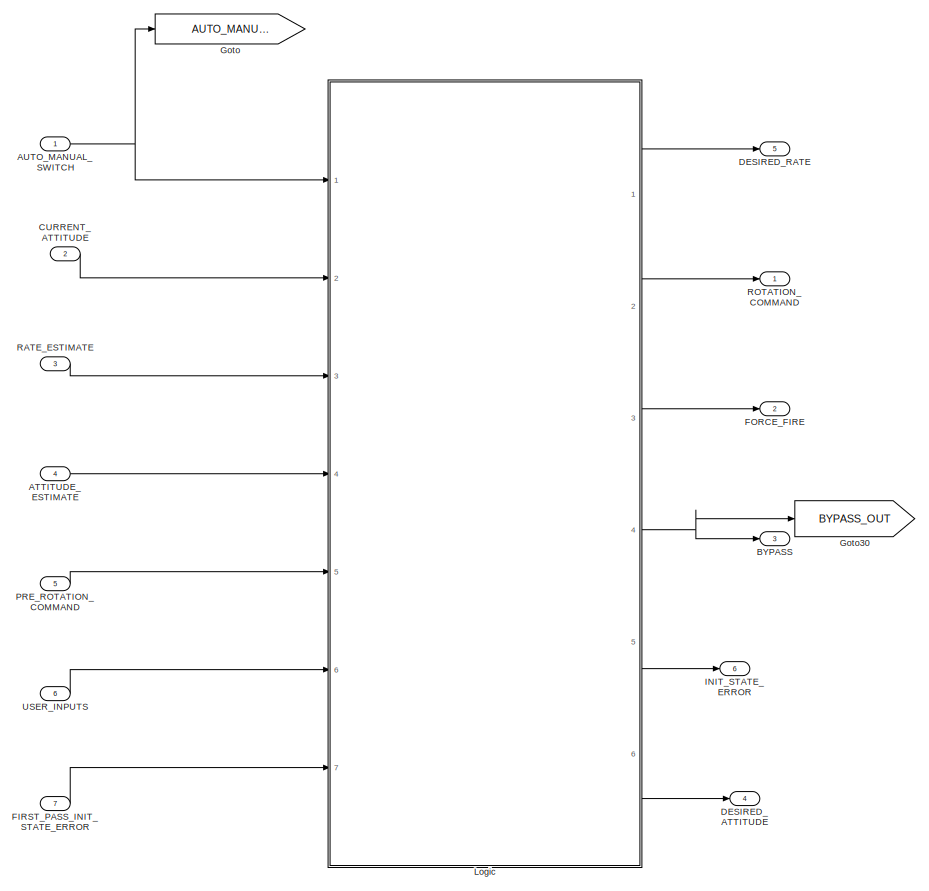
[diagram: root canvas - part 1/2, left side, full height]
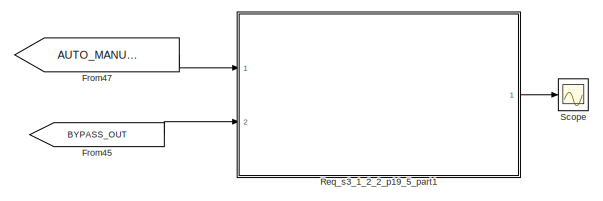
[diagram: root canvas - part 2/2, middle right region]
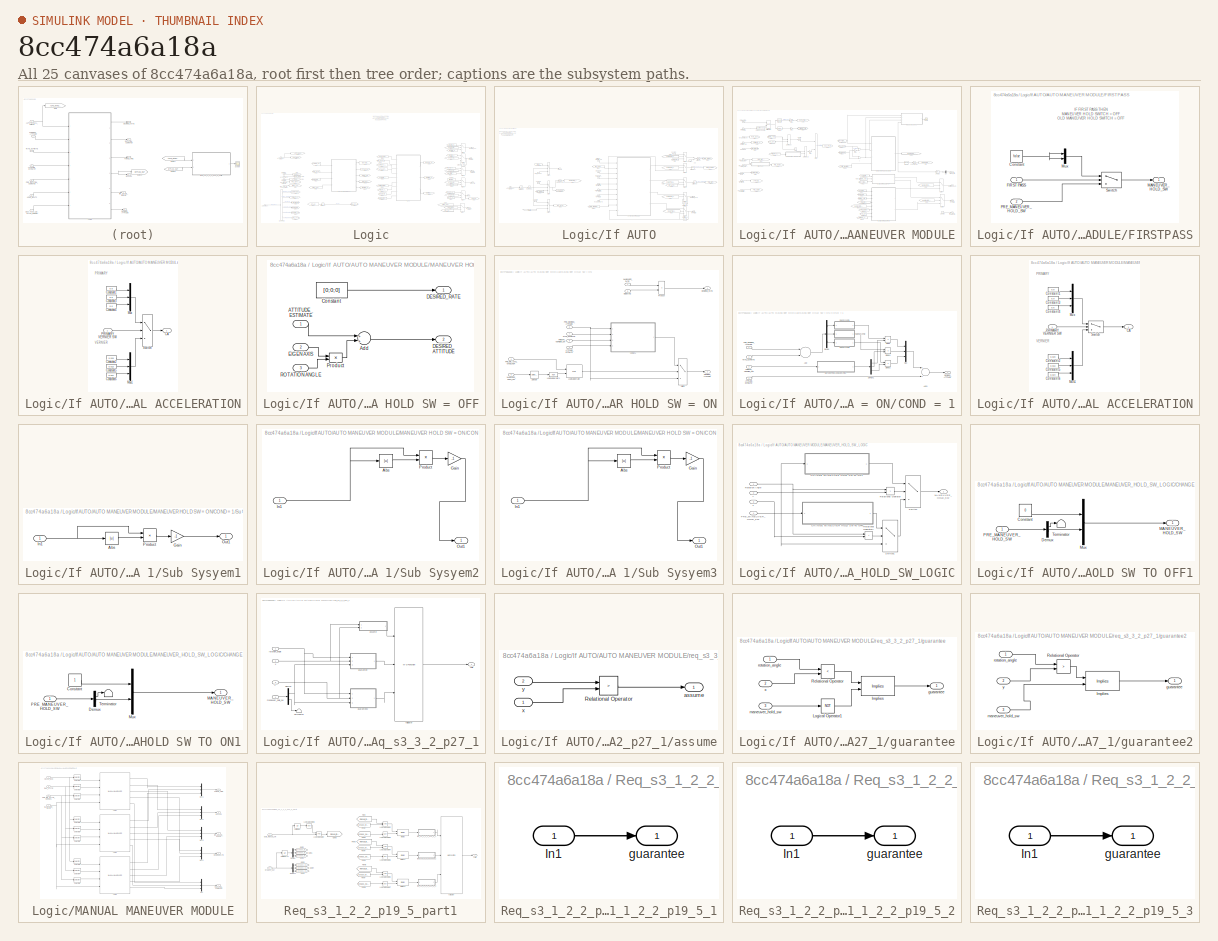
[diagram: thumbnail index - all 25 canvases of the model, root first then tree order]
MODEL slx_8cc474a6a18a
KIND model
CONFIG AbsTol = auto
CONFIG EnableMultiTasking = off
CONFIG FixedStep = 0.08
CONFIG MaxStep = auto
CONFIG MinStep = auto
CONFIG RelTol = 1e-3
CONFIG SampleTimeConstraint = Unconstrained
CONFIG Solver = FixedStepAuto
CONFIG SolverName = FixedStepAuto
CONFIG StartTime = 0.0
CONFIG StopTime = 10.0
WORKSPACE source: MAT-file member
WORKSPACE MCOS: class17 (value not decoded)
BLOCK [Inport] ATTITUDE_ESTIMATE
  IconDisplay = Port number
  Port = 4
  PortDimensions = 3
BLOCK [Inport] AUTO_MANUAL_SWITCH
  IconDisplay = Port number
  OutDataTypeStr = boolean
  PortDimensions = 1
BLOCK [Outport] BYPASS
  IconDisplay = Port number
  Port = 3
BLOCK [Inport] CURRENT_ATTITUDE
  IconDisplay = Port number
  Port = 2
BLOCK [Outport] DESIRED_ATTITUDE
  IconDisplay = Port number
  Port = 4
BLOCK [Outport] DESIRED_RATE
  IconDisplay = Port number
  OutDataTypeStr = double
  Port = 5
BLOCK [Inport] FIRST_PASS_INIT_STATE_ERROR
  IconDisplay = Port number
  Port = 7
BLOCK [Outport] FORCE_FIRE
  IconDisplay = Port number
  Port = 2
BLOCK [From] From45
  GotoTag = BYPASS_OUT
BLOCK [From] From47
  GotoTag = AUTO_MANUAL_SWITCH
BLOCK [Goto] Goto
  GotoTag = AUTO_MANUAL_SWITCH
BLOCK [Goto] Goto30
  GotoTag = BYPASS_OUT
BLOCK [Outport] INIT_STATE_ERROR
  IconDisplay = Port number
  Port = 6
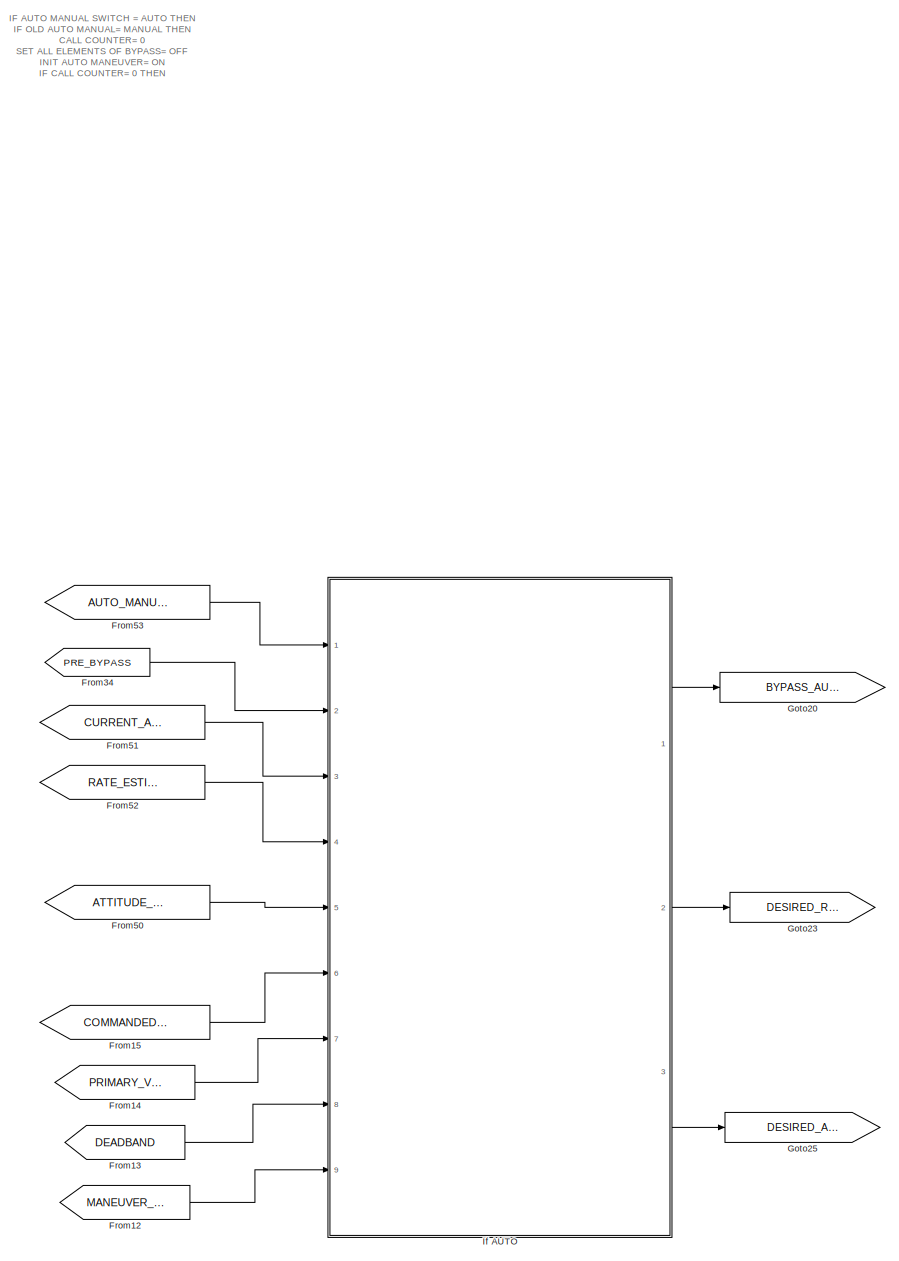
[diagram: Logic - part 1/4, center side, full height]
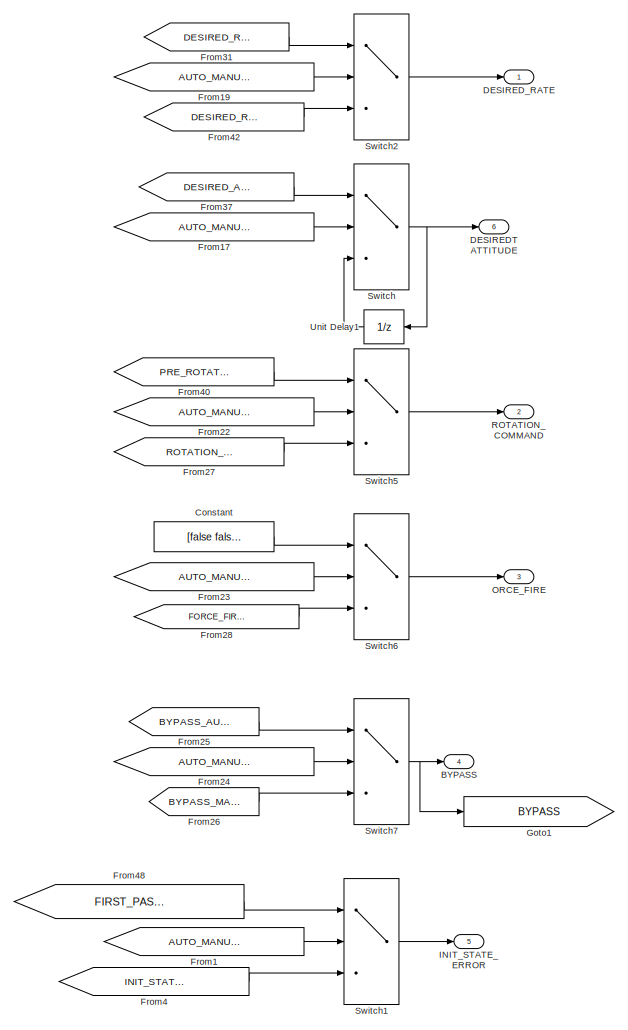
[diagram: Logic - part 2/4, middle right region]
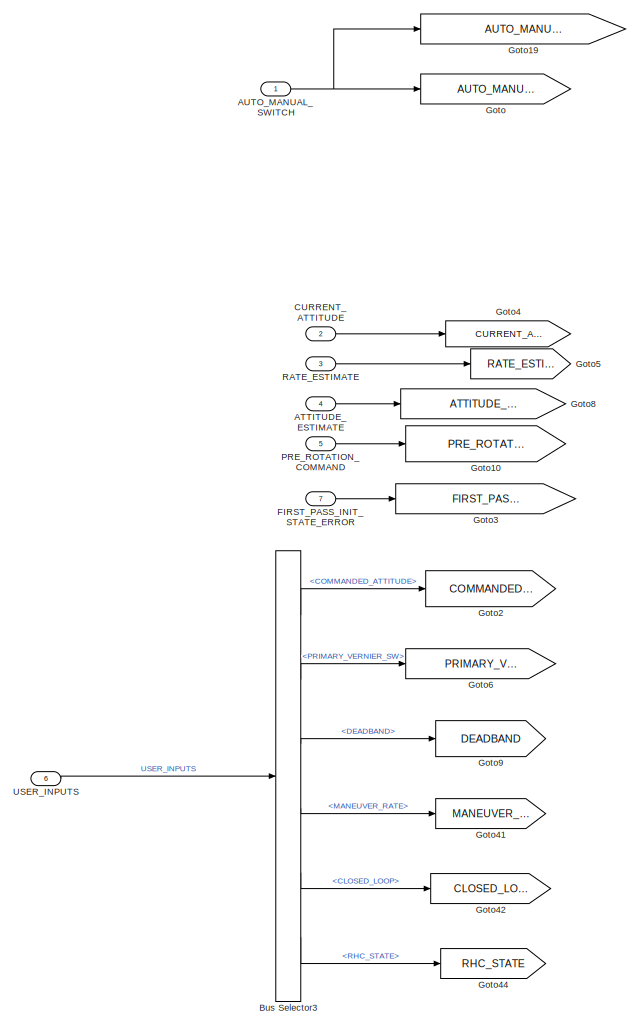
[diagram: Logic - part 3/4, bottom left region]
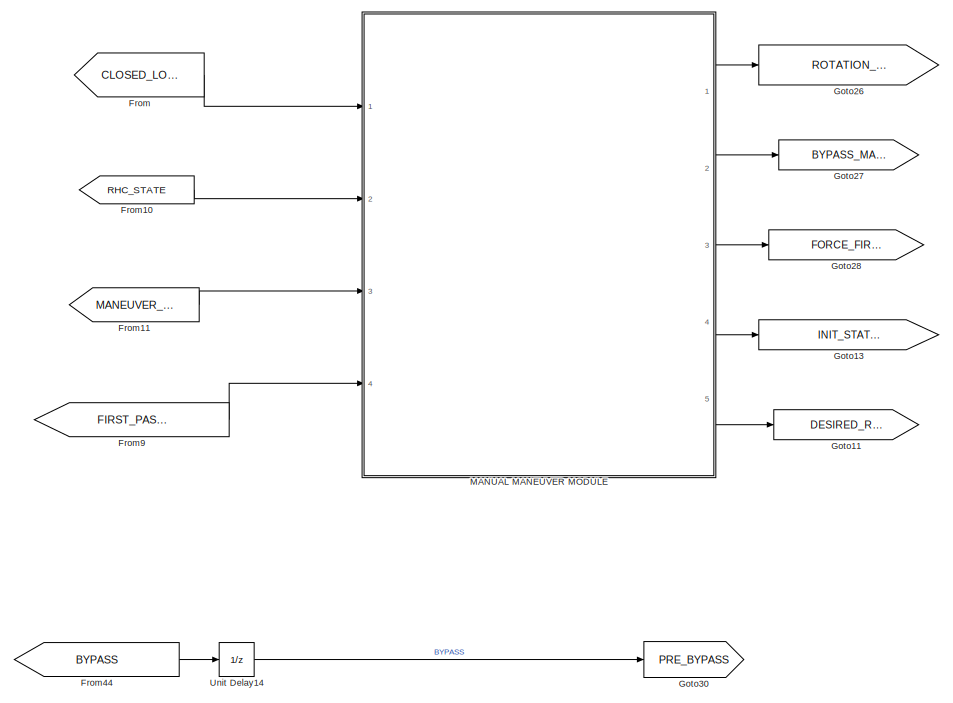
[diagram: Logic - part 4/4, central region]
BLOCK [SubSystem] Logic
  Ports = [7, 6]
  RequestExecContextInheritance = off
  Variant = off
BLOCK [Inport] Logic/ATTITUDE_ESTIMATE
  IconDisplay = Port number
  Port = 4
BLOCK [Inport] Logic/AUTO_MANUAL_SWITCH
  IconDisplay = Port number
BLOCK [Outport] Logic/BYPASS
  IconDisplay = Port number
  Port = 4
BLOCK [BusSelector] Logic/Bus Selector3
  OutputAsBus = off
  OutputSignals = COMMANDED_ATTITUDE,PRIMARY_VERNIER_SW,DEADBAND,MANEUVER_RATE,CLOSED_LOOP,RHC_STATE
  Ports = [1, 6]
BLOCK [Inport] Logic/CURRENT_ATTITUDE
  IconDisplay = Port number
  Port = 2
BLOCK [Constant] Logic/Constant
  Value = [false false false]
BLOCK [Outport] Logic/DESIREDT ATTITUDE
  IconDisplay = Port number
  OutDataTypeStr = double
  Port = 6
BLOCK [Outport] Logic/DESIRED_RATE
  IconDisplay = Port number
  OutDataTypeStr = double
BLOCK [Inport] Logic/FIRST_PASS_INIT_STATE_ERROR
  IconDisplay = Port number
  Port = 7
BLOCK [From] Logic/From
  GotoTag = CLOSED_LOOP
BLOCK [From] Logic/From1
  GotoTag = AUTO_MANUAL_SW_IS_AUTO
BLOCK [From] Logic/From10
  GotoTag = RHC_STATE
BLOCK [From] Logic/From11
  GotoTag = MANEUVER_RATE
BLOCK [From] Logic/From12
  GotoTag = MANEUVER_RATE
BLOCK [From] Logic/From13
  GotoTag = DEADBAND
BLOCK [From] Logic/From14
  GotoTag = PRIMARY_VERNIER_SW
BLOCK [From] Logic/From15
  GotoTag = COMMANDED_ATTITUDE
BLOCK [From] Logic/From17
  GotoTag = AUTO_MANUAL_SW_IS_AUTO
BLOCK [From] Logic/From19
  GotoTag = AUTO_MANUAL_SW_IS_AUTO
BLOCK [From] Logic/From22
  GotoTag = AUTO_MANUAL_SW_IS_AUTO
BLOCK [From] Logic/From23
  GotoTag = AUTO_MANUAL_SW_IS_AUTO
BLOCK [From] Logic/From24
  GotoTag = AUTO_MANUAL_SW_IS_AUTO
BLOCK [From] Logic/From25
  GotoTag = BYPASS_AUTO
BLOCK [From] Logic/From26
  GotoTag = BYPASS_MANUAL
BLOCK [From] Logic/From27
  GotoTag = ROTATION_COMMAND_MANUAL
BLOCK [From] Logic/From28
  GotoTag = FORCE_FIRE_MANUAL
BLOCK [From] Logic/From31
  GotoTag = DESIRED_RATE_AUTO
BLOCK [From] Logic/From34
  GotoTag = PRE_BYPASS
BLOCK [From] Logic/From37
  GotoTag = DESIRED_ATTITUDE_AUTO
BLOCK [From] Logic/From4
  GotoTag = INIT_STATE_ERROR_MANUAL
BLOCK [From] Logic/From40
  GotoTag = PRE_ROTATION_COMMAND
BLOCK [From] Logic/From42
  GotoTag = DESIRED_RATE_MANUAL
BLOCK [From] Logic/From44
  GotoTag = BYPASS
BLOCK [From] Logic/From48
  GotoTag = FIRST_PASS_INIT_STATE_ERROR
BLOCK [From] Logic/From50
  GotoTag = ATTITUDE_ESTIMATE
BLOCK [From] Logic/From51
  GotoTag = CURRENT_ATTITUDE
BLOCK [From] Logic/From52
  GotoTag = RATE_ESTIMATE
BLOCK [From] Logic/From53
  GotoTag = AUTO_MANUAL_SWITCH
BLOCK [From] Logic/From9
  GotoTag = FIRST_PASS_INIT_STATE_ERROR
BLOCK [Goto] Logic/Goto
  GotoTag = AUTO_MANUAL_SWITCH
BLOCK [Goto] Logic/Goto1
  GotoTag = BYPASS
BLOCK [Goto] Logic/Goto10
  GotoTag = PRE_ROTATION_COMMAND
BLOCK [Goto] Logic/Goto11
  GotoTag = DESIRED_RATE_MANUAL
BLOCK [Goto] Logic/Goto13
  GotoTag = INIT_STATE_ERROR_MANUAL
BLOCK [Goto] Logic/Goto19
  GotoTag = AUTO_MANUAL_SW_IS_AUTO
BLOCK [Goto] Logic/Goto2
  GotoTag = COMMANDED_ATTITUDE
BLOCK [Goto] Logic/Goto20
  GotoTag = BYPASS_AUTO
BLOCK [Goto] Logic/Goto23
  GotoTag = DESIRED_RATE_AUTO
BLOCK [Goto] Logic/Goto25
  GotoTag = DESIRED_ATTITUDE_AUTO
BLOCK [Goto] Logic/Goto26
  GotoTag = ROTATION_COMMAND_MANUAL
BLOCK [Goto] Logic/Goto27
  GotoTag = BYPASS_MANUAL
BLOCK [Goto] Logic/Goto28
  GotoTag = FORCE_FIRE_MANUAL
BLOCK [Goto] Logic/Goto3
  GotoTag = FIRST_PASS_INIT_STATE_ERROR
BLOCK [Goto] Logic/Goto30
  GotoTag = PRE_BYPASS
BLOCK [Goto] Logic/Goto4
  GotoTag = CURRENT_ATTITUDE
BLOCK [Goto] Logic/Goto41
  GotoTag = MANEUVER_RATE
BLOCK [Goto] Logic/Goto42
  GotoTag = CLOSED_LOOP
BLOCK [Goto] Logic/Goto44
  GotoTag = RHC_STATE
BLOCK [Goto] Logic/Goto5
  GotoTag = RATE_ESTIMATE
BLOCK [Goto] Logic/Goto6
  GotoTag = PRIMARY_VERNIER_SW
BLOCK [Goto] Logic/Goto8
  GotoTag = ATTITUDE_ESTIMATE
BLOCK [Goto] Logic/Goto9
  GotoTag = DEADBAND
BLOCK [Outport] Logic/INIT_STATE_ERROR
  IconDisplay = Port number
  Port = 5
BLOCK [SubSystem] Logic/If AUTO
  Ports = [9, 3]
  RequestExecContextInheritance = off
  TreatAsAtomicUnit = on
  Variant = off
BLOCK [Inport] Logic/If AUTO/ATTITUDE_ESTIMATE
  IconDisplay = Port number
  Port = 5
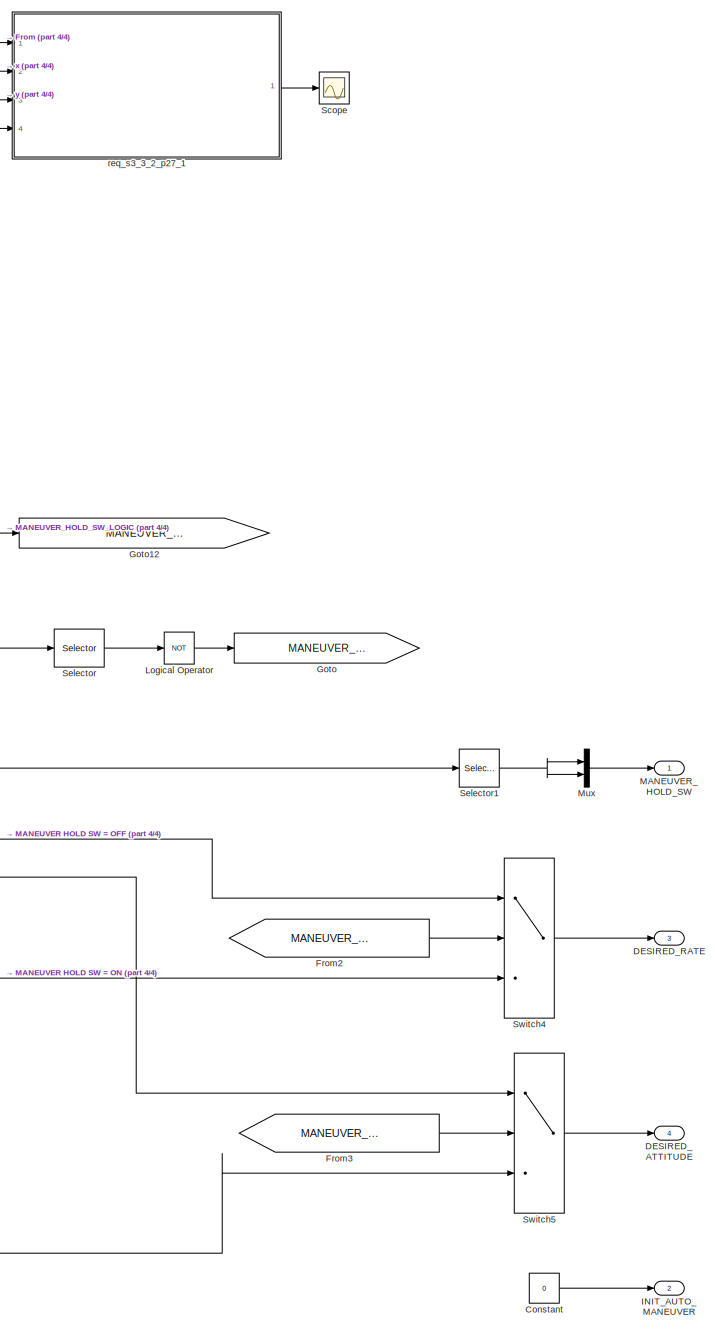
[diagram: Logic/If AUTO/AUTO MANEUVER MODULE - part 1/4, right side, full height]
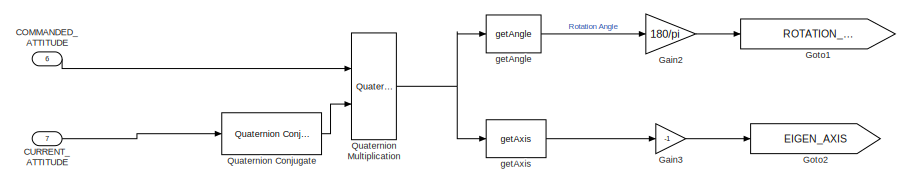
[diagram: Logic/If AUTO/AUTO MANEUVER MODULE - part 2/4, top left region]
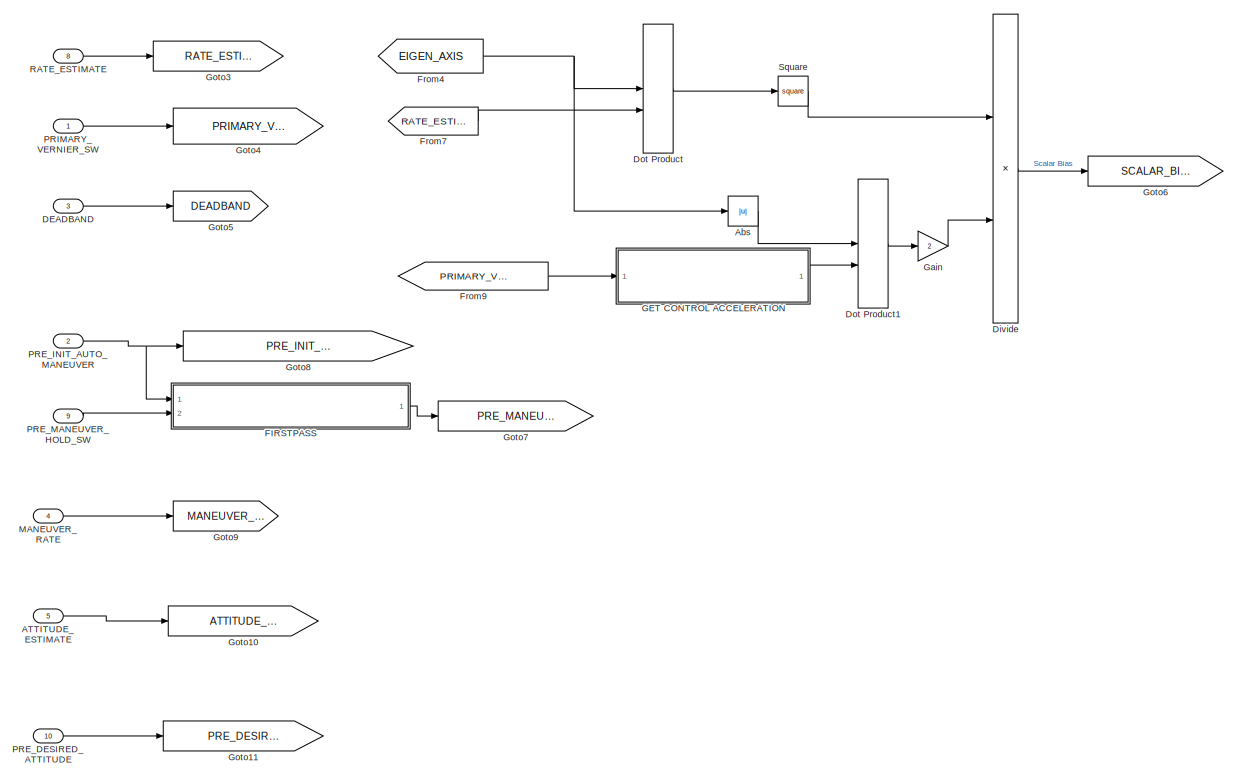
[diagram: Logic/If AUTO/AUTO MANEUVER MODULE - part 3/4, middle left region]
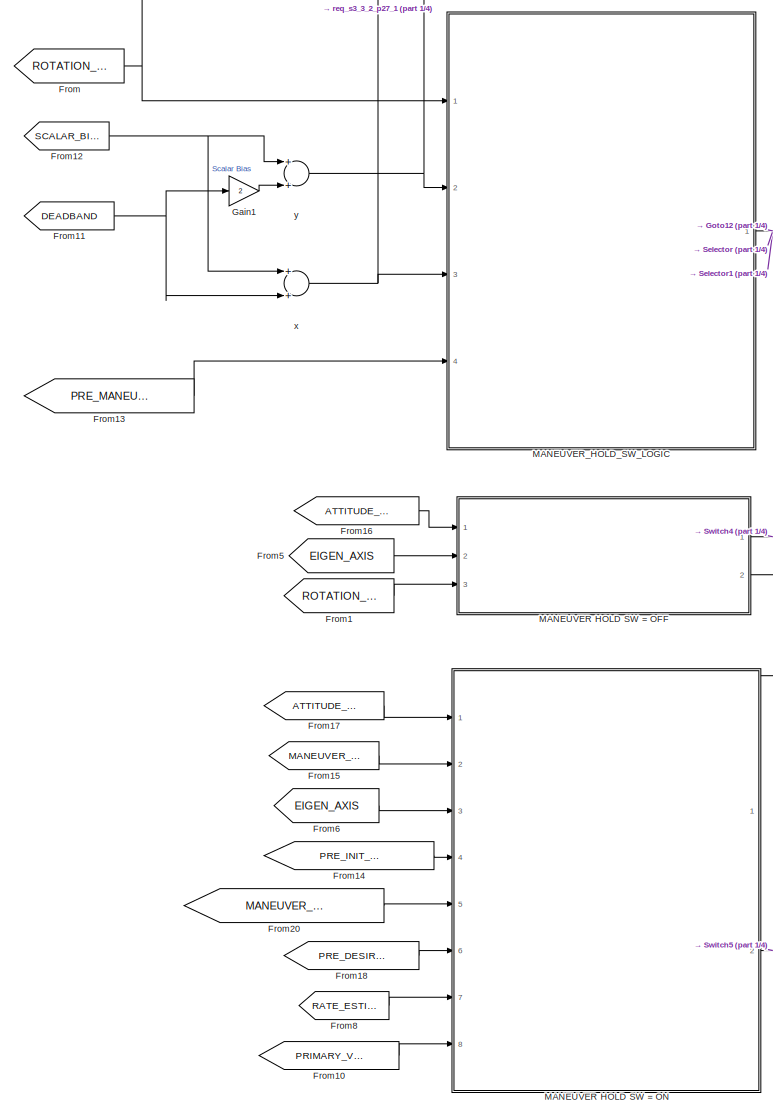
[diagram: Logic/If AUTO/AUTO MANEUVER MODULE - part 4/4, center side, full height]
BLOCK [SubSystem] Logic/If AUTO/AUTO MANEUVER MODULE
  Ports = [10, 4]
  RequestExecContextInheritance = off
  Variant = off
BLOCK [Inport] Logic/If AUTO/AUTO MANEUVER MODULE/ATTITUDE_ESTIMATE
  IconDisplay = Port number
  Port = 5
BLOCK [Abs] Logic/If AUTO/AUTO MANEUVER MODULE/Abs
  SaturateOnIntegerOverflow = off
BLOCK [Inport] Logic/If AUTO/AUTO MANEUVER MODULE/COMMANDED_ATTITUDE
  IconDisplay = Port number
  Port = 6
BLOCK [Inport] Logic/If AUTO/AUTO MANEUVER MODULE/CURRENT_ATTITUDE
  IconDisplay = Port number
  Port = 7
BLOCK [Constant] Logic/If AUTO/AUTO MANEUVER MODULE/Constant
  OutDataTypeStr = boolean
  Value = 0
BLOCK [Inport] Logic/If AUTO/AUTO MANEUVER MODULE/DEADBAND
  IconDisplay = Port number
  Port = 3
BLOCK [Outport] Logic/If AUTO/AUTO MANEUVER MODULE/DESIRED_ATTITUDE
  IconDisplay = Port number
  Port = 4
BLOCK [Outport] Logic/If AUTO/AUTO MANEUVER MODULE/DESIRED_RATE
  IconDisplay = Port number
  Port = 3
BLOCK [Product] Logic/If AUTO/AUTO MANEUVER MODULE/Divide
  InputSameDT = off
  Inputs = */
  OutDataTypeStr = Inherit: Inherit via internal rule
  Ports = [2, 1]
  RndMeth = Floor
  SaturateOnIntegerOverflow = off
BLOCK [DotProduct] Logic/If AUTO/AUTO MANEUVER MODULE/Dot Product
  OutDataTypeStr = Inherit: Inherit via internal rule
BLOCK [DotProduct] Logic/If AUTO/AUTO MANEUVER MODULE/Dot Product1
  OutDataTypeStr = Inherit: Inherit via internal rule
BLOCK [SubSystem] Logic/If AUTO/AUTO MANEUVER MODULE/FIRSTPASS
  Ports = [2, 1]
  RequestExecContextInheritance = off
  Variant = off
BLOCK [Constant] Logic/If AUTO/AUTO MANEUVER MODULE/FIRSTPASS/Constant
  Value = false
BLOCK [Inport] Logic/If AUTO/AUTO MANEUVER MODULE/FIRSTPASS/FIRST PASS
  IconDisplay = Port number
BLOCK [Outport] Logic/If AUTO/AUTO MANEUVER MODULE/FIRSTPASS/MANEUVER_HOLD_SW
  IconDisplay = Port number
BLOCK [Mux] Logic/If AUTO/AUTO MANEUVER MODULE/FIRSTPASS/Mux
  DisplayOption = bar
  Inputs = 2
  Ports = [2, 1]
BLOCK [Inport] Logic/If AUTO/AUTO MANEUVER MODULE/FIRSTPASS/PRE_MANEUVER_HOLD_SW
  IconDisplay = Port number
  Port = 2
BLOCK [Switch] Logic/If AUTO/AUTO MANEUVER MODULE/FIRSTPASS/Switch
  Criteria = u2 ~= 0
  InputSameDT = off
  SaturateOnIntegerOverflow = off
BLOCK [From] Logic/If AUTO/AUTO MANEUVER MODULE/From
  GotoTag = ROTATION_ANGLE
BLOCK [From] Logic/If AUTO/AUTO MANEUVER MODULE/From1
  GotoTag = ROTATION_ANGLE
BLOCK [From] Logic/If AUTO/AUTO MANEUVER MODULE/From10
  GotoTag = PRIMARY_VERNIER_SW
BLOCK [From] Logic/If AUTO/AUTO MANEUVER MODULE/From11
  GotoTag = DEADBAND
BLOCK [From] Logic/If AUTO/AUTO MANEUVER MODULE/From12
  GotoTag = SCALAR_BIAS
BLOCK [From] Logic/If AUTO/AUTO MANEUVER MODULE/From13
  GotoTag = PRE_MANEUVER_HOLD_SW
BLOCK [From] Logic/If AUTO/AUTO MANEUVER MODULE/From14
  GotoTag = PRE_INIT_AUTO_MANEUVER
BLOCK [From] Logic/If AUTO/AUTO MANEUVER MODULE/From15
  GotoTag = MANEUVER_RATE
BLOCK [From] Logic/If AUTO/AUTO MANEUVER MODULE/From16
  GotoTag = ATTITUDE_ESTIMATE
BLOCK [From] Logic/If AUTO/AUTO MANEUVER MODULE/From17
  GotoTag = ATTITUDE_ESTIMATE
BLOCK [From] Logic/If AUTO/AUTO MANEUVER MODULE/From18
  GotoTag = PRE_DESIRED_ATTITUDE
BLOCK [From] Logic/If AUTO/AUTO MANEUVER MODULE/From2
  GotoTag = MANEUVER_HOLD_SW_IS_OFF
BLOCK [From] Logic/If AUTO/AUTO MANEUVER MODULE/From20
  GotoTag = MANEUVER_HOLD_SW_TMP
BLOCK [From] Logic/If AUTO/AUTO MANEUVER MODULE/From3
  GotoTag = MANEUVER_HOLD_SW_IS_OFF
BLOCK [From] Logic/If AUTO/AUTO MANEUVER MODULE/From4
  GotoTag = EIGEN_AXIS
BLOCK [From] Logic/If AUTO/AUTO MANEUVER MODULE/From5
  GotoTag = EIGEN_AXIS
BLOCK [From] Logic/If AUTO/AUTO MANEUVER MODULE/From6
  GotoTag = EIGEN_AXIS
BLOCK [From] Logic/If AUTO/AUTO MANEUVER MODULE/From7
  GotoTag = RATE_ESTIMATE
BLOCK [From] Logic/If AUTO/AUTO MANEUVER MODULE/From8
  GotoTag = RATE_ESTIMATE
BLOCK [From] Logic/If AUTO/AUTO MANEUVER MODULE/From9
  GotoTag = PRIMARY_VERNIER_SW
BLOCK [SubSystem] Logic/If AUTO/AUTO MANEUVER MODULE/GET CONTROL ACCELERATION
  Ports = [1, 1]
  RequestExecContextInheritance = off
  Variant = off
BLOCK [Outport] Logic/If AUTO/AUTO MANEUVER MODULE/GET CONTROL ACCELERATION/CA
  IconDisplay = Port number
BLOCK [Constant] Logic/If AUTO/AUTO MANEUVER MODULE/GET CONTROL ACCELERATION/Constant1
  Value = 0.8
BLOCK [Constant] Logic/If AUTO/AUTO MANEUVER MODULE/GET CONTROL ACCELERATION/Constant2
  Value = 0.019
BLOCK [Constant] Logic/If AUTO/AUTO MANEUVER MODULE/GET CONTROL ACCELERATION/Constant3
  Value = 0.9
BLOCK [Constant] Logic/If AUTO/AUTO MANEUVER MODULE/GET CONTROL ACCELERATION/Constant4
  Value = 0.6
BLOCK [Constant] Logic/If AUTO/AUTO MANEUVER MODULE/GET CONTROL ACCELERATION/Constant5
  Value = 0.013
BLOCK [Constant] Logic/If AUTO/AUTO MANEUVER MODULE/GET CONTROL ACCELERATION/Constant6
  Value = 0.014
BLOCK [Mux] Logic/If AUTO/AUTO MANEUVER MODULE/GET CONTROL ACCELERATION/Mux
  DisplayOption = bar
  Inputs = 3
  Ports = [3, 1]
BLOCK [Mux] Logic/If AUTO/AUTO MANEUVER MODULE/GET CONTROL ACCELERATION/Mux1
  DisplayOption = bar
  Inputs = 3
  Ports = [3, 1]
BLOCK [Inport] Logic/If AUTO/AUTO MANEUVER MODULE/GET CONTROL ACCELERATION/PRIMARY VERNIER SW
  IconDisplay = Port number
BLOCK [Switch] Logic/If AUTO/AUTO MANEUVER MODULE/GET CONTROL ACCELERATION/Switch
  Criteria = u2 ~= 0
  InputSameDT = off
  SaturateOnIntegerOverflow = off
BLOCK [Gain] Logic/If AUTO/AUTO MANEUVER MODULE/Gain
  Gain = 2
  OutDataTypeStr = Inherit: Inherit via internal rule
  ParamDataTypeStr = Inherit: Inherit via internal rule
  SaturateOnIntegerOverflow = off
BLOCK [Gain] Logic/If AUTO/AUTO MANEUVER MODULE/Gain1
  Gain = 2
  OutDataTypeStr = Inherit: Inherit via internal rule
  ParamDataTypeStr = Inherit: Inherit via internal rule
  SaturateOnIntegerOverflow = off
BLOCK [Gain] Logic/If AUTO/AUTO MANEUVER MODULE/Gain2
  Gain = 180/pi
  OutDataTypeStr = Inherit: Inherit via internal rule
  ParamDataTypeStr = Inherit: Inherit via internal rule
  SaturateOnIntegerOverflow = off
BLOCK [Gain] Logic/If AUTO/AUTO MANEUVER MODULE/Gain3
  Gain = -1
  OutDataTypeStr = Inherit: Inherit via internal rule
  ParamDataTypeStr = Inherit: Inherit via internal rule
  SaturateOnIntegerOverflow = off
BLOCK [Goto] Logic/If AUTO/AUTO MANEUVER MODULE/Goto
  GotoTag = MANEUVER_HOLD_SW_IS_OFF
BLOCK [Goto] Logic/If AUTO/AUTO MANEUVER MODULE/Goto1
  GotoTag = ROTATION_ANGLE
BLOCK [Goto] Logic/If AUTO/AUTO MANEUVER MODULE/Goto10
  GotoTag = ATTITUDE_ESTIMATE
BLOCK [Goto] Logic/If AUTO/AUTO MANEUVER MODULE/Goto11
  GotoTag = PRE_DESIRED_ATTITUDE
BLOCK [Goto] Logic/If AUTO/AUTO MANEUVER MODULE/Goto12
  GotoTag = MANEUVER_HOLD_SW_TMP
BLOCK [Goto] Logic/If AUTO/AUTO MANEUVER MODULE/Goto2
  GotoTag = EIGEN_AXIS
BLOCK [Goto] Logic/If AUTO/AUTO MANEUVER MODULE/Goto3
  GotoTag = RATE_ESTIMATE
BLOCK [Goto] Logic/If AUTO/AUTO MANEUVER MODULE/Goto4
  GotoTag = PRIMARY_VERNIER_SW
BLOCK [Goto] Logic/If AUTO/AUTO MANEUVER MODULE/Goto5
  GotoTag = DEADBAND
BLOCK [Goto] Logic/If AUTO/AUTO MANEUVER MODULE/Goto6
  GotoTag = SCALAR_BIAS
BLOCK [Goto] Logic/If AUTO/AUTO MANEUVER MODULE/Goto7
  GotoTag = PRE_MANEUVER_HOLD_SW
BLOCK [Goto] Logic/If AUTO/AUTO MANEUVER MODULE/Goto8
  GotoTag = PRE_INIT_AUTO_MANEUVER
BLOCK [Goto] Logic/If AUTO/AUTO MANEUVER MODULE/Goto9
  GotoTag = MANEUVER_RATE
BLOCK [Outport] Logic/If AUTO/AUTO MANEUVER MODULE/INIT_AUTO_MANEUVER
  IconDisplay = Port number
  Port = 2
BLOCK [Logic] Logic/If AUTO/AUTO MANEUVER MODULE/Logical Operator
  AllPortsSameDT = off
  Operator = NOT
  OutDataTypeStr = boolean
  Ports = [1, 1]
BLOCK [SubSystem] Logic/If AUTO/AUTO MANEUVER MODULE/MANEUVER HOLD SW = OFF
  Ports = [3, 2]
  RequestExecContextInheritance = off
  TreatAsAtomicUnit = on
  Variant = off
BLOCK [Inport] Logic/If AUTO/AUTO MANEUVER MODULE/MANEUVER HOLD SW = OFF/ATTITUDE_ESTIMATE
  IconDisplay = Port number
BLOCK [Sum] Logic/If AUTO/AUTO MANEUVER MODULE/MANEUVER HOLD SW = OFF/Add
  InputSameDT = off
  OutDataTypeStr = Inherit: Inherit via internal rule
  Ports = [2, 1]
  SaturateOnIntegerOverflow = off
BLOCK [Constant] Logic/If AUTO/AUTO MANEUVER MODULE/MANEUVER HOLD SW = OFF/Constant
  Value = [0;0;0]
BLOCK [Outport] Logic/If AUTO/AUTO MANEUVER MODULE/MANEUVER HOLD SW = OFF/DESIRED_ATTITUDE
  IconDisplay = Port number
  Port = 2
BLOCK [Outport] Logic/If AUTO/AUTO MANEUVER MODULE/MANEUVER HOLD SW = OFF/DESIRED_RATE
  IconDisplay = Port number
BLOCK [Inport] Logic/If AUTO/AUTO MANEUVER MODULE/MANEUVER HOLD SW = OFF/EIGEN AXIS
  IconDisplay = Port number
  Port = 2
BLOCK [Product] Logic/If AUTO/AUTO MANEUVER MODULE/MANEUVER HOLD SW = OFF/Product
  InputSameDT = off
  OutDataTypeStr = Inherit: Inherit via internal rule
  Ports = [2, 1]
  RndMeth = Floor
  SaturateOnIntegerOverflow = off
BLOCK [Inport] Logic/If AUTO/AUTO MANEUVER MODULE/MANEUVER HOLD SW = OFF/ROTATION ANGLE
  IconDisplay = Port number
  Port = 3
BLOCK [SubSystem] Logic/If AUTO/AUTO MANEUVER MODULE/MANEUVER HOLD SW = ON
  Ports = [8, 2]
  RequestExecContextInheritance = off
  TreatAsAtomicUnit = on
  Variant = off
BLOCK [Inport] Logic/If AUTO/AUTO MANEUVER MODULE/MANEUVER HOLD SW = ON/ATTITUDE_ESTIMATE
  IconDisplay = Port number
BLOCK [SubSystem] Logic/If AUTO/AUTO MANEUVER MODULE/MANEUVER HOLD SW = ON/COND = 1
  Ports = [4, 1]
  RequestExecContextInheritance = off
  TreatAsAtomicUnit = on
  Variant = off
BLOCK [Inport] Logic/If AUTO/AUTO MANEUVER MODULE/MANEUVER HOLD SW = ON/COND = 1/ATTITUDE_ESTIMATE
  IconDisplay = Port number
  Port = 4
BLOCK [Sum] Logic/If AUTO/AUTO MANEUVER MODULE/MANEUVER HOLD SW = ON/COND = 1/Add
  InputSameDT = off
  Inputs = +-
  OutDataTypeStr = Inherit: Inherit via internal rule
  Ports = [2, 1]
  SaturateOnIntegerOverflow = off
BLOCK [Sum] Logic/If AUTO/AUTO MANEUVER MODULE/MANEUVER HOLD SW = ON/COND = 1/Add1
  InputSameDT = off
  OutDataTypeStr = Inherit: Inherit via internal rule
  Ports = [2, 1]
  SaturateOnIntegerOverflow = off
BLOCK [Outport] Logic/If AUTO/AUTO MANEUVER MODULE/MANEUVER HOLD SW = ON/COND = 1/DESIRED_ATTITUDE
  IconDisplay = Port number
BLOCK [Demux] Logic/If AUTO/AUTO MANEUVER MODULE/MANEUVER HOLD SW = ON/COND = 1/Demux
  DisplayOption = bar
  Outputs = 3
  Ports = [1, 3]
BLOCK [Demux] Logic/If AUTO/AUTO MANEUVER MODULE/MANEUVER HOLD SW = ON/COND = 1/Demux1
  DisplayOption = bar
  Outputs = 3
  Ports = [1, 3]
BLOCK [Product] Logic/If AUTO/AUTO MANEUVER MODULE/MANEUVER HOLD SW = ON/COND = 1/Divide
  InputSameDT = off
  Inputs = */
  OutDataTypeStr = Inherit: Inherit via internal rule
  Ports = [2, 1]
  RndMeth = Floor
  SaturateOnIntegerOverflow = off
BLOCK [Product] Logic/If AUTO/AUTO MANEUVER MODULE/MANEUVER HOLD SW = ON/COND = 1/Divide1
  InputSameDT = off
  Inputs = */
  OutDataTypeStr = Inherit: Inherit via internal rule
  Ports = [2, 1]
  RndMeth = Floor
  SaturateOnIntegerOverflow = off
BLOCK [Product] Logic/If AUTO/AUTO MANEUVER MODULE/MANEUVER HOLD SW = ON/COND = 1/Divide2
  InputSameDT = off
  Inputs = */
  OutDataTypeStr = Inherit: Inherit via internal rule
  Ports = [2, 1]
  RndMeth = Floor
  SaturateOnIntegerOverflow = off
BLOCK [SubSystem] Logic/If AUTO/AUTO MANEUVER MODULE/MANEUVER HOLD SW = ON/COND = 1/GET CONTROL ACCELERATION
  Ports = [1, 1]
  RequestExecContextInheritance = off
  Variant = off
BLOCK [Outport] Logic/If AUTO/AUTO MANEUVER MODULE/MANEUVER HOLD SW = ON/COND = 1/GET CONTROL ACCELERATION/CA
  IconDisplay = Port number
BLOCK [Constant] Logic/If AUTO/AUTO MANEUVER MODULE/MANEUVER HOLD SW = ON/COND = 1/GET CONTROL ACCELERATION/Constant1
  Value = 0.8
BLOCK [Constant] Logic/If AUTO/AUTO MANEUVER MODULE/MANEUVER HOLD SW = ON/COND = 1/GET CONTROL ACCELERATION/Constant2
  Value = 0.019
BLOCK [Constant] Logic/If AUTO/AUTO MANEUVER MODULE/MANEUVER HOLD SW = ON/COND = 1/GET CONTROL ACCELERATION/Constant3
  Value = 0.9
BLOCK [Constant] Logic/If AUTO/AUTO MANEUVER MODULE/MANEUVER HOLD SW = ON/COND = 1/GET CONTROL ACCELERATION/Constant4
  Value = 0.6
BLOCK [Constant] Logic/If AUTO/AUTO MANEUVER MODULE/MANEUVER HOLD SW = ON/COND = 1/GET CONTROL ACCELERATION/Constant5
  Value = 0.013
BLOCK [Constant] Logic/If AUTO/AUTO MANEUVER MODULE/MANEUVER HOLD SW = ON/COND = 1/GET CONTROL ACCELERATION/Constant6
  Value = 0.014
BLOCK [Mux] Logic/If AUTO/AUTO MANEUVER MODULE/MANEUVER HOLD SW = ON/COND = 1/GET CONTROL ACCELERATION/Mux
  DisplayOption = bar
  Inputs = 3
  Ports = [3, 1]
BLOCK [Mux] Logic/If AUTO/AUTO MANEUVER MODULE/MANEUVER HOLD SW = ON/COND = 1/GET CONTROL ACCELERATION/Mux1
  DisplayOption = bar
  Inputs = 3
  Ports = [3, 1]
BLOCK [Inport] Logic/If AUTO/AUTO MANEUVER MODULE/MANEUVER HOLD SW = ON/COND = 1/GET CONTROL ACCELERATION/PRIMARY VERNIER SW
  IconDisplay = Port number
BLOCK [Switch] Logic/If AUTO/AUTO MANEUVER MODULE/MANEUVER HOLD SW = ON/COND = 1/GET CONTROL ACCELERATION/Switch
  Criteria = u2 ~= 0
  InputSameDT = off
  SaturateOnIntegerOverflow = off
BLOCK [Mux] Logic/If AUTO/AUTO MANEUVER MODULE/MANEUVER HOLD SW = ON/COND = 1/Mux
  DisplayOption = bar
  Inputs = 3
  Ports = [3, 1]
BLOCK [Inport] Logic/If AUTO/AUTO MANEUVER MODULE/MANEUVER HOLD SW = ON/COND = 1/PRE_DESIRED_ATTITUDE
  IconDisplay = Port number
BLOCK [Inport] Logic/If AUTO/AUTO MANEUVER MODULE/MANEUVER HOLD SW = ON/COND = 1/PRIMARY_VERNIER_SW
  IconDisplay = Port number
  Port = 3
BLOCK [Inport] Logic/If AUTO/AUTO MANEUVER MODULE/MANEUVER HOLD SW = ON/COND = 1/RATE_ESTIMATE
  IconDisplay = Port number
  Port = 2
BLOCK [SubSystem] Logic/If AUTO/AUTO MANEUVER MODULE/MANEUVER HOLD SW = ON/COND = 1/Sub Sysyem1
  Ports = [1, 1]
  RequestExecContextInheritance = off
  Variant = off
BLOCK [Abs] Logic/If AUTO/AUTO MANEUVER MODULE/MANEUVER HOLD SW = ON/COND = 1/Sub Sysyem1/Abs
  SaturateOnIntegerOverflow = off
BLOCK [Gain] Logic/If AUTO/AUTO MANEUVER MODULE/MANEUVER HOLD SW = ON/COND = 1/Sub Sysyem1/Gain
  Gain = -1
  OutDataTypeStr = Inherit: Inherit via internal rule
  ParamDataTypeStr = Inherit: Inherit via internal rule
  SaturateOnIntegerOverflow = off
BLOCK [Inport] Logic/If AUTO/AUTO MANEUVER MODULE/MANEUVER HOLD SW = ON/COND = 1/Sub Sysyem1/In1
  IconDisplay = Port number
BLOCK [Outport] Logic/If AUTO/AUTO MANEUVER MODULE/MANEUVER HOLD SW = ON/COND = 1/Sub Sysyem1/Out1
  IconDisplay = Port number
BLOCK [Product] Logic/If AUTO/AUTO MANEUVER MODULE/MANEUVER HOLD SW = ON/COND = 1/Sub Sysyem1/Product
  InputSameDT = off
  OutDataTypeStr = Inherit: Inherit via internal rule
  Ports = [2, 1]
  RndMeth = Floor
  SaturateOnIntegerOverflow = off
BLOCK [SubSystem] Logic/If AUTO/AUTO MANEUVER MODULE/MANEUVER HOLD SW = ON/COND = 1/Sub Sysyem2
  Ports = [1, 1]
  RequestExecContextInheritance = off
  Variant = off
BLOCK [Abs] Logic/If AUTO/AUTO MANEUVER MODULE/MANEUVER HOLD SW = ON/COND = 1/Sub Sysyem2/Abs
  SaturateOnIntegerOverflow = off
BLOCK [Gain] Logic/If AUTO/AUTO MANEUVER MODULE/MANEUVER HOLD SW = ON/COND = 1/Sub Sysyem2/Gain
  Gain = -1
  OutDataTypeStr = Inherit: Inherit via internal rule
  ParamDataTypeStr = Inherit: Inherit via internal rule
  SaturateOnIntegerOverflow = off
BLOCK [Inport] Logic/If AUTO/AUTO MANEUVER MODULE/MANEUVER HOLD SW = ON/COND = 1/Sub Sysyem2/In1
  IconDisplay = Port number
BLOCK [Outport] Logic/If AUTO/AUTO MANEUVER MODULE/MANEUVER HOLD SW = ON/COND = 1/Sub Sysyem2/Out1
  IconDisplay = Port number
BLOCK [Product] Logic/If AUTO/AUTO MANEUVER MODULE/MANEUVER HOLD SW = ON/COND = 1/Sub Sysyem2/Product
  InputSameDT = off
  OutDataTypeStr = Inherit: Inherit via internal rule
  Ports = [2, 1]
  RndMeth = Floor
  SaturateOnIntegerOverflow = off
BLOCK [SubSystem] Logic/If AUTO/AUTO MANEUVER MODULE/MANEUVER HOLD SW = ON/COND = 1/Sub Sysyem3
  Ports = [1, 1]
  RequestExecContextInheritance = off
  Variant = off
BLOCK [Abs] Logic/If AUTO/AUTO MANEUVER MODULE/MANEUVER HOLD SW = ON/COND = 1/Sub Sysyem3/Abs
  SaturateOnIntegerOverflow = off
BLOCK [Gain] Logic/If AUTO/AUTO MANEUVER MODULE/MANEUVER HOLD SW = ON/COND = 1/Sub Sysyem3/Gain
  Gain = -1
  OutDataTypeStr = Inherit: Inherit via internal rule
  ParamDataTypeStr = Inherit: Inherit via internal rule
  SaturateOnIntegerOverflow = off
BLOCK [Inport] Logic/If AUTO/AUTO MANEUVER MODULE/MANEUVER HOLD SW = ON/COND = 1/Sub Sysyem3/In1
  IconDisplay = Port number
BLOCK [Outport] Logic/If AUTO/AUTO MANEUVER MODULE/MANEUVER HOLD SW = ON/COND = 1/Sub Sysyem3/Out1
  IconDisplay = Port number
BLOCK [Product] Logic/If AUTO/AUTO MANEUVER MODULE/MANEUVER HOLD SW = ON/COND = 1/Sub Sysyem3/Product
  InputSameDT = off
  OutDataTypeStr = Inherit: Inherit via internal rule
  Ports = [2, 1]
  RndMeth = Floor
  SaturateOnIntegerOverflow = off
BLOCK [Outport] Logic/If AUTO/AUTO MANEUVER MODULE/MANEUVER HOLD SW = ON/DESIRED_ATTITUDE
  IconDisplay = Port number
  Port = 2
BLOCK [Outport] Logic/If AUTO/AUTO MANEUVER MODULE/MANEUVER HOLD SW = ON/DESIRED_RATE
  IconDisplay = Port number
BLOCK [Inport] Logic/If AUTO/AUTO MANEUVER MODULE/MANEUVER HOLD SW = ON/EIGEN AXIS
  IconDisplay = Port number
  Port = 3
BLOCK [Logic] Logic/If AUTO/AUTO MANEUVER MODULE/MANEUVER HOLD SW = ON/Logical Operator
  AllPortsSameDT = off
  Operator = OR
  OutDataTypeStr = boolean
  Ports = [2, 1]
BLOCK [Logic] Logic/If AUTO/AUTO MANEUVER MODULE/MANEUVER HOLD SW = ON/Logical Operator1
  AllPortsSameDT = off
  Operator = NOT
  OutDataTypeStr = boolean
  Ports = [1, 1]
BLOCK [Inport] Logic/If AUTO/AUTO MANEUVER MODULE/MANEUVER HOLD SW = ON/MANEUVER_HOLD_SW
  IconDisplay = Port number
  Port = 5
BLOCK [Inport] Logic/If AUTO/AUTO MANEUVER MODULE/MANEUVER HOLD SW = ON/MANEUVER_RATE
  IconDisplay = Port number
  Port = 2
BLOCK [Inport] Logic/If AUTO/AUTO MANEUVER MODULE/MANEUVER HOLD SW = ON/PRE_DESIRED_ATTITUDE
  IconDisplay = Port number
  Port = 6
BLOCK [Inport] Logic/If AUTO/AUTO MANEUVER MODULE/MANEUVER HOLD SW = ON/PRE_INIT_AUTO_MANEUVER
  IconDisplay = Port number
  Port = 4
BLOCK [Inport] Logic/If AUTO/AUTO MANEUVER MODULE/MANEUVER HOLD SW = ON/PRIMARY_VERNIER_SW
  IconDisplay = Port number
  Port = 8
BLOCK [Product] Logic/If AUTO/AUTO MANEUVER MODULE/MANEUVER HOLD SW = ON/Product
  InputSameDT = off
  OutDataTypeStr = Inherit: Inherit via internal rule
  Ports = [2, 1]
  RndMeth = Floor
  SaturateOnIntegerOverflow = off
BLOCK [Inport] Logic/If AUTO/AUTO MANEUVER MODULE/MANEUVER HOLD SW = ON/RATE_ESTIMATE
  IconDisplay = Port number
  Port = 7
BLOCK [Selector] Logic/If AUTO/AUTO MANEUVER MODULE/MANEUVER HOLD SW = ON/Selector
  IndexOptions = Index vector (dialog)
  Indices = [2]
  InputPortWidth = 2
  OutputSizes = 1
  Ports = [1, 1]
BLOCK [Switch] Logic/If AUTO/AUTO MANEUVER MODULE/MANEUVER HOLD SW = ON/Switch
  Criteria = u2 ~= 0
  InputSameDT = off
  SaturateOnIntegerOverflow = off
BLOCK [Outport] Logic/If AUTO/AUTO MANEUVER MODULE/MANEUVER_HOLD_SW
  IconDisplay = Port number
BLOCK [SubSystem] Logic/If AUTO/AUTO MANEUVER MODULE/MANEUVER_HOLD_SW_LOGIC
  Ports = [4, 1]
  RequestExecContextInheritance = off
  Variant = off
BLOCK [SubSystem] Logic/If AUTO/AUTO MANEUVER MODULE/MANEUVER_HOLD_SW_LOGIC/CHANGE MANEUVER HOLD SW TO OFF1
  Ports = [1, 1]
  RequestExecContextInheritance = off
  TreatAsAtomicUnit = on
  Variant = off
BLOCK [Constant] Logic/If AUTO/AUTO MANEUVER MODULE/MANEUVER_HOLD_SW_LOGIC/CHANGE MANEUVER HOLD SW TO OFF1/Constant
  OutDataTypeStr = boolean
  Value = 0
BLOCK [Demux] Logic/If AUTO/AUTO MANEUVER MODULE/MANEUVER_HOLD_SW_LOGIC/CHANGE MANEUVER HOLD SW TO OFF1/Demux
  DisplayOption = bar
  Outputs = 2
  Ports = [1, 2]
BLOCK [Outport] Logic/If AUTO/AUTO MANEUVER MODULE/MANEUVER_HOLD_SW_LOGIC/CHANGE MANEUVER HOLD SW TO OFF1/MANEUVER_HOLD_SW
  IconDisplay = Port number
BLOCK [Mux] Logic/If AUTO/AUTO MANEUVER MODULE/MANEUVER_HOLD_SW_LOGIC/CHANGE MANEUVER HOLD SW TO OFF1/Mux
  DisplayOption = bar
  Inputs = 2
  Ports = [2, 1]
BLOCK [Inport] Logic/If AUTO/AUTO MANEUVER MODULE/MANEUVER_HOLD_SW_LOGIC/CHANGE MANEUVER HOLD SW TO OFF1/PRE_MANEUVER_HOLD_SW
  IconDisplay = Port number
BLOCK [Terminator] Logic/If AUTO/AUTO MANEUVER MODULE/MANEUVER_HOLD_SW_LOGIC/CHANGE MANEUVER HOLD SW TO OFF1/Terminator
BLOCK [SubSystem] Logic/If AUTO/AUTO MANEUVER MODULE/MANEUVER_HOLD_SW_LOGIC/CHANGE MANEUVER HOLD SW TO ON1
  Ports = [1, 1]
  RequestExecContextInheritance = off
  TreatAsAtomicUnit = on
  Variant = off
BLOCK [Constant] Logic/If AUTO/AUTO MANEUVER MODULE/MANEUVER_HOLD_SW_LOGIC/CHANGE MANEUVER HOLD SW TO ON1/Constant
  OutDataTypeStr = boolean
BLOCK [Demux] Logic/If AUTO/AUTO MANEUVER MODULE/MANEUVER_HOLD_SW_LOGIC/CHANGE MANEUVER HOLD SW TO ON1/Demux
  DisplayOption = bar
  Outputs = 2
  Ports = [1, 2]
BLOCK [Outport] Logic/If AUTO/AUTO MANEUVER MODULE/MANEUVER_HOLD_SW_LOGIC/CHANGE MANEUVER HOLD SW TO ON1/MANEUVER_HOLD_SW
  IconDisplay = Port number
BLOCK [Mux] Logic/If AUTO/AUTO MANEUVER MODULE/MANEUVER_HOLD_SW_LOGIC/CHANGE MANEUVER HOLD SW TO ON1/Mux
  DisplayOption = bar
  Inputs = 2
  Ports = [2, 1]
BLOCK [Inport] Logic/If AUTO/AUTO MANEUVER MODULE/MANEUVER_HOLD_SW_LOGIC/CHANGE MANEUVER HOLD SW TO ON1/PRE_MANEUVER_HOLD_SW
  IconDisplay = Port number
BLOCK [Terminator] Logic/If AUTO/AUTO MANEUVER MODULE/MANEUVER_HOLD_SW_LOGIC/CHANGE MANEUVER HOLD SW TO ON1/Terminator
BLOCK [Outport] Logic/If AUTO/AUTO MANEUVER MODULE/MANEUVER_HOLD_SW_LOGIC/MANEUVER_HOLD_SW
  IconDisplay = Port number
BLOCK [Inport] Logic/If AUTO/AUTO MANEUVER MODULE/MANEUVER_HOLD_SW_LOGIC/PRE_MANEUVER_HOLD_SW
  IconDisplay = Port number
  Port = 4
BLOCK [RelationalOperator] Logic/If AUTO/AUTO MANEUVER MODULE/MANEUVER_HOLD_SW_LOGIC/Relational Operator
  InputSameDT = off
  Operator = >
  OutDataTypeStr = boolean
  Ports = [2, 1]
  RndMeth = Simplest
BLOCK [RelationalOperator] Logic/If AUTO/AUTO MANEUVER MODULE/MANEUVER_HOLD_SW_LOGIC/Relational Operator1
  InputSameDT = off
  Operator = <
  OutDataTypeStr = boolean
  Ports = [2, 1]
  RndMeth = Simplest
BLOCK [Inport] Logic/If AUTO/AUTO MANEUVER MODULE/MANEUVER_HOLD_SW_LOGIC/Rotation Angle
  IconDisplay = Port number
BLOCK [Switch] Logic/If AUTO/AUTO MANEUVER MODULE/MANEUVER_HOLD_SW_LOGIC/Switch
  Criteria = u2 ~= 0
  InputSameDT = off
  SaturateOnIntegerOverflow = off
BLOCK [Switch] Logic/If AUTO/AUTO MANEUVER MODULE/MANEUVER_HOLD_SW_LOGIC/Switch1
  Criteria = u2 ~= 0
  InputSameDT = off
  SaturateOnIntegerOverflow = off
BLOCK [Inport] Logic/If AUTO/AUTO MANEUVER MODULE/MANEUVER_HOLD_SW_LOGIC/x
  IconDisplay = Port number
  Port = 3
BLOCK [Inport] Logic/If AUTO/AUTO MANEUVER MODULE/MANEUVER_HOLD_SW_LOGIC/y
  IconDisplay = Port number
  Port = 2
BLOCK [Inport] Logic/If AUTO/AUTO MANEUVER MODULE/MANEUVER_RATE
  IconDisplay = Port number
  Port = 4
BLOCK [Mux] Logic/If AUTO/AUTO MANEUVER MODULE/Mux
  DisplayOption = bar
  Inputs = 2
  Ports = [2, 1]
BLOCK [Inport] Logic/If AUTO/AUTO MANEUVER MODULE/PRE_DESIRED_ATTITUDE
  IconDisplay = Port number
  Port = 10
BLOCK [Inport] Logic/If AUTO/AUTO MANEUVER MODULE/PRE_INIT_AUTO_MANEUVER
  IconDisplay = Port number
  Port = 2
BLOCK [Inport] Logic/If AUTO/AUTO MANEUVER MODULE/PRE_MANEUVER_HOLD_SW
  IconDisplay = Port number
  Port = 9
BLOCK [Inport] Logic/If AUTO/AUTO MANEUVER MODULE/PRIMARY_VERNIER_SW
  IconDisplay = Port number
BLOCK [Reference] Logic/If AUTO/AUTO MANEUVER MODULE/Quaternion Conjugate  REF=MATLAB_Function_lib/Quaternion
Conjugate
  Ports = [1, 1]
  SourceBlock = MATLAB_Function_lib/Quaternion\nConjugate
  SourceType = SubSystem
BLOCK [Reference] Logic/If AUTO/AUTO MANEUVER MODULE/Quaternion Multiplication  REF=MATLAB_Function_lib/Quaternion
Multiplication
  Ports = [2, 1]
  SourceBlock = MATLAB_Function_lib/Quaternion\nMultiplication
  SourceType = SubSystem
BLOCK [Inport] Logic/If AUTO/AUTO MANEUVER MODULE/RATE_ESTIMATE
  IconDisplay = Port number
  Port = 8
BLOCK [Scope] Logic/If AUTO/AUTO MANEUVER MODULE/Scope
  NumInputPorts = 1
  Ports = [1]
  ScopeSpecificationString = Simulink.scopes.TimeScopeBlockCfg('CurrentConfiguration', extmgr.ConfigurationSet(extmgr.Configuration('Core','General UI',true),extmgr.Configuration('Core','Source UI',true),extmgr.Configuration('Sources','WiredSimulink',true,'DataLoggingVariableName','ScopeData1'),extmgr.Configuration('Visuals','Time Domain',true),extmgr.Configuration('Tools','Plot Navigation',true),extmgr.Configuration('Tools',...<+40ch>
BLOCK [Selector] Logic/If AUTO/AUTO MANEUVER MODULE/Selector
  IndexOptions = Index vector (dialog)
  Indices = [1]
  InputPortWidth = 2
  OutputSizes = 1
  Ports = [1, 1]
BLOCK [Selector] Logic/If AUTO/AUTO MANEUVER MODULE/Selector1
  IndexOptions = Index vector (dialog)
  Indices = [1]
  InputPortWidth = 2
  OutputSizes = 1
  Ports = [1, 1]
BLOCK [Math] Logic/If AUTO/AUTO MANEUVER MODULE/Square
  Operator = square
  Ports = [1, 1]
  RndMeth = Zero
BLOCK [Switch] Logic/If AUTO/AUTO MANEUVER MODULE/Switch4
  Criteria = u2 ~= 0
  InputSameDT = off
  SaturateOnIntegerOverflow = off
BLOCK [Switch] Logic/If AUTO/AUTO MANEUVER MODULE/Switch5
  Criteria = u2 ~= 0
  InputSameDT = off
  SaturateOnIntegerOverflow = off
BLOCK [Reference] Logic/If AUTO/AUTO MANEUVER MODULE/getAngle  REF=MATLAB_Function_lib/getAngle
  Ports = [1, 1]
  SourceBlock = MATLAB_Function_lib/getAngle
  SourceType = SubSystem
BLOCK [Reference] Logic/If AUTO/AUTO MANEUVER MODULE/getAxis  REF=MATLAB_Function_lib/getAxis
  Ports = [1, 1]
  SourceBlock = MATLAB_Function_lib/getAxis
  SourceType = SubSystem
BLOCK [SubSystem] Logic/If AUTO/AUTO MANEUVER MODULE/req_s3_3_2_p27_1
  CopyFcn = set_param(gcb, 'LinkStatus', 'none');
  Ports = [4, 1]
  RequestExecContextInheritance = off
  Variant = off
BLOCK [Demux] Logic/If AUTO/AUTO MANEUVER MODULE/req_s3_3_2_p27_1/Demux
  DisplayOption = bar
  Outputs = 2
  Ports = [1, 2]
BLOCK [Terminator] Logic/If AUTO/AUTO MANEUVER MODULE/req_s3_3_2_p27_1/Terminator
BLOCK [SubSystem] Logic/If AUTO/AUTO MANEUVER MODULE/req_s3_3_2_p27_1/assume
  Ports = [2, 1]
  RequestExecContextInheritance = off
  Variant = off
BLOCK [RelationalOperator] Logic/If AUTO/AUTO MANEUVER MODULE/req_s3_3_2_p27_1/assume/Relational Operator
  InputSameDT = off
  Operator = >
  OutDataTypeStr = boolean
  Ports = [2, 1]
  RndMeth = Simplest
BLOCK [Outport] Logic/If AUTO/AUTO MANEUVER MODULE/req_s3_3_2_p27_1/assume/assume
  IconDisplay = Port number
  OutDataTypeStr = boolean
BLOCK [Inport] Logic/If AUTO/AUTO MANEUVER MODULE/req_s3_3_2_p27_1/assume/x
  IconDisplay = Port number
BLOCK [Inport] Logic/If AUTO/AUTO MANEUVER MODULE/req_s3_3_2_p27_1/assume/y
  IconDisplay = Port number
  Port = 2
BLOCK [SubSystem] Logic/If AUTO/AUTO MANEUVER MODULE/req_s3_3_2_p27_1/guarantee
  Ports = [3, 1]
  RequestExecContextInheritance = off
  Variant = off
BLOCK [Reference] Logic/If AUTO/AUTO MANEUVER MODULE/req_s3_3_2_p27_1/guarantee/Implies  REF=sldvlib/Verification Utilities/Implies
  Ports = [2, 1]
  SourceBlock = sldvlib/Verification Utilities/Implies
  SourceProductBaseCode = DV
  SourceProductName = Simulink Design Verifier
  SourceType = Design Verifier Implies
BLOCK [Logic] Logic/If AUTO/AUTO MANEUVER MODULE/req_s3_3_2_p27_1/guarantee/Logical Operator1
  AllPortsSameDT = off
  Operator = NOT
  OutDataTypeStr = boolean
  Ports = [1, 1]
BLOCK [RelationalOperator] Logic/If AUTO/AUTO MANEUVER MODULE/req_s3_3_2_p27_1/guarantee/Relational Operator
  InputSameDT = off
  Operator = <
  OutDataTypeStr = boolean
  Ports = [2, 1]
  RndMeth = Simplest
BLOCK [Outport] Logic/If AUTO/AUTO MANEUVER MODULE/req_s3_3_2_p27_1/guarantee/guarantee
  IconDisplay = Port number
  OutDataTypeStr = boolean
BLOCK [Inport] Logic/If AUTO/AUTO MANEUVER MODULE/req_s3_3_2_p27_1/guarantee/maneuver_hold_sw
  IconDisplay = Port number
  Port = 3
BLOCK [Inport] Logic/If AUTO/AUTO MANEUVER MODULE/req_s3_3_2_p27_1/guarantee/rotation_angle
  IconDisplay = Port number
BLOCK [Inport] Logic/If AUTO/AUTO MANEUVER MODULE/req_s3_3_2_p27_1/guarantee/x
  IconDisplay = Port number
  Port = 2
BLOCK [SubSystem] Logic/If AUTO/AUTO MANEUVER MODULE/req_s3_3_2_p27_1/guarantee2
  Ports = [3, 1]
  RequestExecContextInheritance = off
  Variant = off
BLOCK [Reference] Logic/If AUTO/AUTO MANEUVER MODULE/req_s3_3_2_p27_1/guarantee2/Implies  REF=sldvlib/Verification Utilities/Implies
  Ports = [2, 1]
  SourceBlock = sldvlib/Verification Utilities/Implies
  SourceProductBaseCode = DV
  SourceProductName = Simulink Design Verifier
  SourceType = Design Verifier Implies
BLOCK [RelationalOperator] Logic/If AUTO/AUTO MANEUVER MODULE/req_s3_3_2_p27_1/guarantee2/Relational Operator
  InputSameDT = off
  Operator = >
  OutDataTypeStr = boolean
  Ports = [2, 1]
  RndMeth = Simplest
BLOCK [Outport] Logic/If AUTO/AUTO MANEUVER MODULE/req_s3_3_2_p27_1/guarantee2/guarantee
  IconDisplay = Port number
  OutDataTypeStr = boolean
BLOCK [Inport] Logic/If AUTO/AUTO MANEUVER MODULE/req_s3_3_2_p27_1/guarantee2/maneuver_hold_sw
  IconDisplay = Port number
  Port = 3
BLOCK [Inport] Logic/If AUTO/AUTO MANEUVER MODULE/req_s3_3_2_p27_1/guarantee2/rotation_angle
  IconDisplay = Port number
BLOCK [Inport] Logic/If AUTO/AUTO MANEUVER MODULE/req_s3_3_2_p27_1/guarantee2/y
  IconDisplay = Port number
  Port = 2
BLOCK [Inport] Logic/If AUTO/AUTO MANEUVER MODULE/req_s3_3_2_p27_1/maneuver_hold_sw
  IconDisplay = Port number
  OutDataTypeStr = boolean
  Port = 4
BLOCK [Inport] Logic/If AUTO/AUTO MANEUVER MODULE/req_s3_3_2_p27_1/rotation_angle
  IconDisplay = Port number
BLOCK [Outport] Logic/If AUTO/AUTO MANEUVER MODULE/req_s3_3_2_p27_1/valid
  IconDisplay = Port number
BLOCK [M-S-Function] Logic/If AUTO/AUTO MANEUVER MODULE/req_s3_3_2_p27_1/validator
  FunctionName = contract
  InitFcn = contractBeforeSimulation();
  LoadFcn = saveValidatorParameters(gcb);
  Ports = [3, 1]
  StopFcn = contractAfterSimulation();
BLOCK [Inport] Logic/If AUTO/AUTO MANEUVER MODULE/req_s3_3_2_p27_1/x
  IconDisplay = Port number
  Port = 2
BLOCK [Inport] Logic/If AUTO/AUTO MANEUVER MODULE/req_s3_3_2_p27_1/y
  IconDisplay = Port number
  Port = 3
BLOCK [Sum] Logic/If AUTO/AUTO MANEUVER MODULE/x
  InputSameDT = off
  OutDataTypeStr = Inherit: Inherit via internal rule
  Ports = [2, 1]
  SaturateOnIntegerOverflow = off
BLOCK [Sum] Logic/If AUTO/AUTO MANEUVER MODULE/y
  InputSameDT = off
  OutDataTypeStr = Inherit: Inherit via internal rule
  Ports = [2, 1]
  SaturateOnIntegerOverflow = off
BLOCK [Inport] Logic/If AUTO/AUTO_MANUAL_SWITCH
  IconDisplay = Port number
BLOCK [Sum] Logic/If AUTO/Add
  InputSameDT = off
  Inputs = +-
  OutDataTypeStr = Inherit: Inherit via internal rule
  Ports = [2, 1]
  SaturateOnIntegerOverflow = off
BLOCK [Outport] Logic/If AUTO/BYPASS
  IconDisplay = Port number
BLOCK [Inport] Logic/If AUTO/COMMANDED_ATTITUDE
  IconDisplay = Port number
  Port = 6
BLOCK [Inport] Logic/If AUTO/CURRENT_ATTITUDE
  IconDisplay = Port number
  Port = 3
BLOCK [Reference] Logic/If AUTO/Compare To Zero  REF=simulink/Logic and Bit
Operations/Compare
To Zero
  Ports = [1, 1]
  SourceBlock = simulink/Logic and Bit\nOperations/Compare\nTo Zero
  SourceProductBaseCode = SL
  SourceProductName = Simulink
  SourceType = Compare To Zero
BLOCK [Constant] Logic/If AUTO/Constant
  OutDataTypeStr = uint8
  SampleTime = -1
BLOCK [Constant] Logic/If AUTO/Constant1
  OutDataTypeStr = uint8
  Value = 12
BLOCK [Constant] Logic/If AUTO/Constant2
  OutDataTypeStr = uint8
  Value = 0
BLOCK [Constant] Logic/If AUTO/Constant4
  OutDataTypeStr = boolean
  Value = [false; false; false]
BLOCK [Constant] Logic/If AUTO/Constant5
  OutDataTypeStr = boolean
BLOCK [Inport] Logic/If AUTO/DEADBAND
  IconDisplay = Port number
  Port = 8
BLOCK [Outport] Logic/If AUTO/DESIRED_ATTITUDE
  IconDisplay = Port number
  Port = 3
BLOCK [Outport] Logic/If AUTO/DESIRED_RATE
  IconDisplay = Port number
  Port = 2
BLOCK [From] Logic/If AUTO/From
  GotoTag = COUNTER
BLOCK [From] Logic/If AUTO/From1
  GotoTag = INIT_AUTO_MANEUVER
BLOCK [From] Logic/If AUTO/From10
  GotoTag = PRE_MANEUVER_HOLD_SW
BLOCK [From] Logic/If AUTO/From2
  GotoTag = INIT_AUTO_MANEUVER
BLOCK [From] Logic/If AUTO/From3
  GotoTag = PRE_INIT_AUTO_MANEUVER
BLOCK [From] Logic/If AUTO/From36
  GotoTag = PRE_COUNTER
BLOCK [From] Logic/If AUTO/From4
  GotoTag = COUNTER_IS_ZERO
BLOCK [From] Logic/If AUTO/From5
  GotoTag = COUNTER_IS_ZERO
BLOCK [From] Logic/If AUTO/From6
  GotoTag = COUNTER_IS_ZERO
BLOCK [From] Logic/If AUTO/From7
  GotoTag = COUNTER_IS_ZERO
BLOCK [From] Logic/If AUTO/From8
  GotoTag = COUNTER_IS_ZERO
BLOCK [Goto] Logic/If AUTO/Goto
  GotoTag = COUNTER
BLOCK [Goto] Logic/If AUTO/Goto1
  GotoTag = COUNTER_IS_ZERO
BLOCK [Goto] Logic/If AUTO/Goto2
  GotoTag = INIT_AUTO_MANEUVER
BLOCK [Goto] Logic/If AUTO/Goto3
  GotoTag = PRE_COUNTER
BLOCK [Goto] Logic/If AUTO/Goto31
  GotoTag = PRE_INIT_AUTO_MANEUVER
BLOCK [Goto] Logic/If AUTO/Goto38
  GotoTag = PRE_MANEUVER_HOLD_SW
BLOCK [Inport] Logic/If AUTO/MANEUVER_RATE
  IconDisplay = Port number
  Port = 9
BLOCK [UnitDelay] Logic/If AUTO/OLD AUTO MANUAL
  InitialCondition = false
  InputProcessing = Elements as channels (sample based)
  SampleTime = -1
BLOCK [Inport] Logic/If AUTO/PRE_BYPASS
  IconDisplay = Port number
  Port = 2
BLOCK [Inport] Logic/If AUTO/PRIMARY_VERNIER_SW
  IconDisplay = Port number
  Port = 7
BLOCK [Inport] Logic/If AUTO/RATE_ESTIMATE
  IconDisplay = Port number
  Port = 4
BLOCK [Switch] Logic/If AUTO/Switch
  Criteria = u2 ~= 0
  InputSameDT = off
  SaturateOnIntegerOverflow = off
BLOCK [Switch] Logic/If AUTO/Switch1
  Criteria = u2 ~= 0
  InputSameDT = off
  SaturateOnIntegerOverflow = off
BLOCK [Switch] Logic/If AUTO/Switch2
  Criteria = u2 ~= 0
  InputSameDT = off
  SaturateOnIntegerOverflow = off
BLOCK [Switch] Logic/If AUTO/Switch4
  Criteria = u2 > Threshold
  InputSameDT = off
  SaturateOnIntegerOverflow = off
BLOCK [Switch] Logic/If AUTO/Switch5
  Criteria = u2 > Threshold
  InputSameDT = off
  SaturateOnIntegerOverflow = off
BLOCK [Switch] Logic/If AUTO/Switch6
  Criteria = u2 > Threshold
  InputSameDT = off
  SaturateOnIntegerOverflow = off
BLOCK [Switch] Logic/If AUTO/Switch7
  Criteria = u2 > Threshold
  InputSameDT = off
  SaturateOnIntegerOverflow = off
BLOCK [Switch] Logic/If AUTO/Switch8
  Criteria = u2 > Threshold
  InputSameDT = off
  SaturateOnIntegerOverflow = off
BLOCK [UnitDelay] Logic/If AUTO/Unit Delay1
  InputProcessing = Elements as channels (sample based)
  SampleTime = -1
BLOCK [UnitDelay] Logic/If AUTO/Unit Delay15
  InitialCondition = [0;0;0]
  InputProcessing = Elements as channels (sample based)
  SampleTime = -1
BLOCK [UnitDelay] Logic/If AUTO/Unit Delay16
  InitialCondition = [0;0;0]
  InputProcessing = Elements as channels (sample based)
  SampleTime = -1
BLOCK [UnitDelay] Logic/If AUTO/Unit Delay17
  InitialCondition = true
  InputProcessing = Elements as channels (sample based)
  SampleTime = -1
BLOCK [UnitDelay] Logic/If AUTO/Unit Delay23
  InitialCondition = [false; false]
  InputProcessing = Elements as channels (sample based)
  SampleTime = -1
BLOCK [Logic] Logic/If AUTO/WAS MANUAL
  AllPortsSameDT = off
  Inputs = 1
  Operator = NOT
  OutDataTypeStr = boolean
  Ports = [1, 1]
BLOCK [SubSystem] Logic/MANUAL MANEUVER MODULE
  Ports = [4, 5]
  RequestExecContextInheritance = off
  Variant = off
BLOCK [Reference] Logic/MANUAL MANEUVER MODULE/AXIS 1  REF=MATLAB_Function_lib/MANUAL MANEUVER
  Ports = [4, 5]
  SourceBlock = MATLAB_Function_lib/MANUAL MANEUVER
  SourceType = SubSystem
BLOCK [Reference] Logic/MANUAL MANEUVER MODULE/AXIS 2  REF=MATLAB_Function_lib/MANUAL MANEUVER
  Ports = [4, 5]
  SourceBlock = MATLAB_Function_lib/MANUAL MANEUVER
  SourceType = SubSystem
BLOCK [Reference] Logic/MANUAL MANEUVER MODULE/AXIS 3  REF=MATLAB_Function_lib/MANUAL MANEUVER
  Ports = [4, 5]
  SourceBlock = MATLAB_Function_lib/MANUAL MANEUVER
  SourceType = SubSystem
BLOCK [Outport] Logic/MANUAL MANEUVER MODULE/BYPASS
  IconDisplay = Port number
  Port = 2
BLOCK [Outport] Logic/MANUAL MANEUVER MODULE/DESIRED RATE
  IconDisplay = Port number
  Port = 5
BLOCK [Outport] Logic/MANUAL MANEUVER MODULE/FORCE_FIRE
  IconDisplay = Port number
  OutDataTypeStr = boolean
  Port = 3
  PortDimensions = 3
BLOCK [Outport] Logic/MANUAL MANEUVER MODULE/INIT_STATE_ERROR
  IconDisplay = Port number
  Port = 4
BLOCK [Inport] Logic/MANUAL MANEUVER MODULE/MANEUVER_RATE
  IconDisplay = Port number
  Port = 3
BLOCK [Mux] Logic/MANUAL MANEUVER MODULE/Mux
  DisplayOption = bar
  Inputs = 3
  Ports = [3, 1]
BLOCK [Mux] Logic/MANUAL MANEUVER MODULE/Mux1
  DisplayOption = bar
  Inputs = 3
  Ports = [3, 1]
BLOCK [Mux] Logic/MANUAL MANEUVER MODULE/Mux2
  DisplayOption = bar
  Inputs = 3
  Ports = [3, 1]
BLOCK [Mux] Logic/MANUAL MANEUVER MODULE/Mux3
  DisplayOption = bar
  Inputs = 3
  Ports = [3, 1]
BLOCK [Mux] Logic/MANUAL MANEUVER MODULE/Mux4
  DisplayOption = bar
  Inputs = 3
  Ports = [3, 1]
BLOCK [Inport] Logic/MANUAL MANEUVER MODULE/PRE_INIT_STATE_ERROR1
  IconDisplay = Port number
  OutDataTypeStr = boolean
  Port = 4
  PortDimensions = 3
BLOCK [Inport] Logic/MANUAL MANEUVER MODULE/RHC_STATE
  IconDisplay = Port number
  Port = 2
BLOCK [Outport] Logic/MANUAL MANEUVER MODULE/ROTATION_COMMAND
  IconDisplay = Port number
BLOCK [Selector] Logic/MANUAL MANEUVER MODULE/Selector1
  IndexOptions = Index vector (dialog)
  Indices = 1
  InputPortWidth = 3
  OutputSizes = 1
  Ports = [1, 1]
BLOCK [Selector] Logic/MANUAL MANEUVER MODULE/Selector2
  IndexOptions = Index vector (dialog)
  Indices = 1
  InputPortWidth = 3
  OutputSizes = 1
  Ports = [1, 1]
BLOCK [Selector] Logic/MANUAL MANEUVER MODULE/Selector3
  IndexOptions = Index vector (dialog)
  Indices = 2
  InputPortWidth = 3
  OutputSizes = 1
  Ports = [1, 1]
BLOCK [Selector] Logic/MANUAL MANEUVER MODULE/Selector4
  IndexOptions = Index vector (dialog)
  Indices = 1
  InputPortWidth = 3
  OutputSizes = 1
  Ports = [1, 1]
BLOCK [Selector] Logic/MANUAL MANEUVER MODULE/Selector5
  IndexOptions = Index vector (dialog)
  Indices = 2
  InputPortWidth = 3
  OutputSizes = 1
  Ports = [1, 1]
BLOCK [Selector] Logic/MANUAL MANEUVER MODULE/Selector6
  IndexOptions = Index vector (dialog)
  Indices = 2
  InputPortWidth = 3
  OutputSizes = 1
  Ports = [1, 1]
BLOCK [Selector] Logic/MANUAL MANEUVER MODULE/Selector7
  IndexOptions = Index vector (dialog)
  Indices = 3
  InputPortWidth = 3
  OutputSizes = 1
  Ports = [1, 1]
BLOCK [Selector] Logic/MANUAL MANEUVER MODULE/Selector8
  IndexOptions = Index vector (dialog)
  Indices = 3
  InputPortWidth = 3
  OutputSizes = 1
  Ports = [1, 1]
BLOCK [Selector] Logic/MANUAL MANEUVER MODULE/Selector9
  IndexOptions = Index vector (dialog)
  Indices = 3
  InputPortWidth = 3
  OutputSizes = 1
  Ports = [1, 1]
BLOCK [Inport] Logic/MANUAL MANEUVER MODULE/closed_loop
  IconDisplay = Port number
BLOCK [Outport] Logic/ORCE_FIRE
  IconDisplay = Port number
  Port = 3
BLOCK [Inport] Logic/PRE_ROTATION_COMMAND
  IconDisplay = Port number
  Port = 5
BLOCK [Inport] Logic/RATE_ESTIMATE
  IconDisplay = Port number
  Port = 3
BLOCK [Outport] Logic/ROTATION_COMMAND
  IconDisplay = Port number
  Port = 2
BLOCK [Switch] Logic/Switch
  Criteria = u2 ~= 0
  InputSameDT = off
  SaturateOnIntegerOverflow = off
BLOCK [Switch] Logic/Switch1
  Criteria = u2 ~= 0
  InputSameDT = off
  SaturateOnIntegerOverflow = off
BLOCK [Switch] Logic/Switch2
  Criteria = u2 ~= 0
  InputSameDT = off
  SaturateOnIntegerOverflow = off
BLOCK [Switch] Logic/Switch5
  Criteria = u2 ~= 0
  InputSameDT = off
  SaturateOnIntegerOverflow = off
BLOCK [Switch] Logic/Switch6
  Criteria = u2 ~= 0
  InputSameDT = off
  SaturateOnIntegerOverflow = off
BLOCK [Switch] Logic/Switch7
  Criteria = u2 ~= 0
  InputSameDT = off
  SaturateOnIntegerOverflow = off
BLOCK [Inport] Logic/USER_INPUTS
  IconDisplay = Port number
  Port = 6
BLOCK [UnitDelay] Logic/Unit Delay1
  InitialCondition = [0;0;0]
  InputProcessing = Elements as channels (sample based)
  SampleTime = -1
BLOCK [UnitDelay] Logic/Unit Delay14
  InitialCondition = [true; true; true]
  InputProcessing = Elements as channels (sample based)
  SampleTime = -1
BLOCK [Inport] PRE_ROTATION_COMMAND
  IconDisplay = Port number
  OutDataTypeStr = double
  Port = 5
  PortDimensions = 3
BLOCK [Inport] RATE_ESTIMATE
  IconDisplay = Port number
  Port = 3
BLOCK [Outport] ROTATION_COMMAND
  IconDisplay = Port number
  OutDataTypeStr = double
  PortDimensions = 3
BLOCK [SubSystem] Req_s3_1_2_2_p19_5_part1
  CopyFcn = set_param(gcb, 'LinkStatus', 'none');
  Ports = [2, 1]
  RequestExecContextInheritance = off
  Variant = off
BLOCK [Demux] Req_s3_1_2_2_p19_5_part1/Demux
  DisplayOption = bar
  Outputs = 3
  Ports = [1, 3]
BLOCK [Demux] Req_s3_1_2_2_p19_5_part1/Demux1
  DisplayOption = bar
  Outputs = 3
  Ports = [1, 3]
BLOCK [From] Req_s3_1_2_2_p19_5_part1/From
  GotoTag = manual_to_auto
BLOCK [From] Req_s3_1_2_2_p19_5_part1/From1
  GotoTag = bypass_in_1
BLOCK [From] Req_s3_1_2_2_p19_5_part1/From2
  GotoTag = bypass_out_1
BLOCK [From] Req_s3_1_2_2_p19_5_part1/From3
  GotoTag = manual_to_auto
BLOCK [From] Req_s3_1_2_2_p19_5_part1/From4
  GotoTag = bypass_in_2
BLOCK [From] Req_s3_1_2_2_p19_5_part1/From5
  GotoTag = bypass_out_2
BLOCK [From] Req_s3_1_2_2_p19_5_part1/From6
  GotoTag = manual_to_auto
BLOCK [From] Req_s3_1_2_2_p19_5_part1/From7
  GotoTag = bypass_in_3
BLOCK [From] Req_s3_1_2_2_p19_5_part1/From8
  GotoTag = bypass_out_3
BLOCK [Goto] Req_s3_1_2_2_p19_5_part1/Goto1
  GotoTag = bypass_in_2
BLOCK [Goto] Req_s3_1_2_2_p19_5_part1/Goto2
  GotoTag = bypass_in_1
BLOCK [Goto] Req_s3_1_2_2_p19_5_part1/Goto3
  GotoTag = bypass_in_3
BLOCK [Goto] Req_s3_1_2_2_p19_5_part1/Goto4
  GotoTag = bypass_out_2
BLOCK [Goto] Req_s3_1_2_2_p19_5_part1/Goto5
  GotoTag = bypass_out_1
BLOCK [Goto] Req_s3_1_2_2_p19_5_part1/Goto6
  GotoTag = bypass_out_3
BLOCK [Goto] Req_s3_1_2_2_p19_5_part1/Goto8
  GotoTag = manual_to_auto
BLOCK [Reference] Req_s3_1_2_2_p19_5_part1/Implies  REF=sldvlib/Verification Utilities/Implies
  Ports = [2, 1]
  SourceBlock = sldvlib/Verification Utilities/Implies
  SourceProductBaseCode = DV
  SourceProductName = Simulink Design Verifier
  SourceType = Design Verifier Implies
BLOCK [Reference] Req_s3_1_2_2_p19_5_part1/Implies1  REF=sldvlib/Verification Utilities/Implies
  Ports = [2, 1]
  SourceBlock = sldvlib/Verification Utilities/Implies
  SourceProductBaseCode = DV
  SourceProductName = Simulink Design Verifier
  SourceType = Design Verifier Implies
BLOCK [Reference] Req_s3_1_2_2_p19_5_part1/Implies2  REF=sldvlib/Verification Utilities/Implies
  Ports = [2, 1]
  SourceBlock = sldvlib/Verification Utilities/Implies
  SourceProductBaseCode = DV
  SourceProductName = Simulink Design Verifier
  SourceType = Design Verifier Implies
BLOCK [Logic] Req_s3_1_2_2_p19_5_part1/Logical Operator
  AllPortsSameDT = off
  OutDataTypeStr = boolean
  Ports = [2, 1]
BLOCK [Logic] Req_s3_1_2_2_p19_5_part1/Logical Operator1
  AllPortsSameDT = off
  Inputs = 1
  Operator = NOT
  OutDataTypeStr = boolean
  Ports = [1, 1]
BLOCK [Logic] Req_s3_1_2_2_p19_5_part1/Logical Operator2
  AllPortsSameDT = off
  OutDataTypeStr = boolean
  Ports = [2, 1]
BLOCK [Logic] Req_s3_1_2_2_p19_5_part1/Logical Operator3
  AllPortsSameDT = off
  Operator = NOT
  OutDataTypeStr = boolean
  Ports = [1, 1]
BLOCK [Logic] Req_s3_1_2_2_p19_5_part1/Logical Operator4
  AllPortsSameDT = off
  OutDataTypeStr = boolean
  Ports = [2, 1]
BLOCK [Logic] Req_s3_1_2_2_p19_5_part1/Logical Operator5
  AllPortsSameDT = off
  Operator = NOT
  OutDataTypeStr = boolean
  Ports = [1, 1]
BLOCK [Logic] Req_s3_1_2_2_p19_5_part1/Logical Operator6
  AllPortsSameDT = off
  OutDataTypeStr = boolean
  Ports = [2, 1]
BLOCK [Logic] Req_s3_1_2_2_p19_5_part1/Logical Operator7
  AllPortsSameDT = off
  Operator = NOT
  OutDataTypeStr = boolean
  Ports = [1, 1]
BLOCK [UnitDelay] Req_s3_1_2_2_p19_5_part1/Unit Delay
  InitialCondition = true
  InputProcessing = Elements as channels (sample based)
  SampleTime = -1
BLOCK [UnitDelay] Req_s3_1_2_2_p19_5_part1/Unit Delay14
  InitialCondition = [true; true; true]
  InputProcessing = Elements as channels (sample based)
  SampleTime = -1
BLOCK [Inport] Req_s3_1_2_2_p19_5_part1/auto_manual_sw
  IconDisplay = Port number
  OutDataTypeStr = boolean
  PortDimensions = 1
BLOCK [Inport] Req_s3_1_2_2_p19_5_part1/bypass_out
  IconDisplay = Port number
  Port = 2
BLOCK [SubSystem] Req_s3_1_2_2_p19_5_part1/req_s3_1_2_2_p19_5_1
  Ports = [1, 1]
  RequestExecContextInheritance = off
  Variant = off
BLOCK [Inport] Req_s3_1_2_2_p19_5_part1/req_s3_1_2_2_p19_5_1/In1
  IconDisplay = Port number
BLOCK [Outport] Req_s3_1_2_2_p19_5_part1/req_s3_1_2_2_p19_5_1/guarantee
  IconDisplay = Port number
  OutDataTypeStr = boolean
BLOCK [SubSystem] Req_s3_1_2_2_p19_5_part1/req_s3_1_2_2_p19_5_2
  Ports = [1, 1]
  RequestExecContextInheritance = off
  Variant = off
BLOCK [Inport] Req_s3_1_2_2_p19_5_part1/req_s3_1_2_2_p19_5_2/In1
  IconDisplay = Port number
BLOCK [Outport] Req_s3_1_2_2_p19_5_part1/req_s3_1_2_2_p19_5_2/guarantee
  IconDisplay = Port number
  OutDataTypeStr = boolean
BLOCK [SubSystem] Req_s3_1_2_2_p19_5_part1/req_s3_1_2_2_p19_5_3
  Ports = [1, 1]
  RequestExecContextInheritance = off
  Variant = off
BLOCK [Inport] Req_s3_1_2_2_p19_5_part1/req_s3_1_2_2_p19_5_3/In1
  IconDisplay = Port number
BLOCK [Outport] Req_s3_1_2_2_p19_5_part1/req_s3_1_2_2_p19_5_3/guarantee
  IconDisplay = Port number
  OutDataTypeStr = boolean
BLOCK [Outport] Req_s3_1_2_2_p19_5_part1/valid
  IconDisplay = Port number
BLOCK [M-S-Function] Req_s3_1_2_2_p19_5_part1/validator
  FunctionName = contract
  InitFcn = contractBeforeSimulation();
  LoadFcn = saveValidatorParameters(gcb);
  Ports = [3, 1]
  StopFcn = contractAfterSimulation();
BLOCK [Scope] Scope
  NumInputPorts = 1
  Ports = [1]
  ScopeSpecificationString = Simulink.scopes.TimeScopeBlockCfg('CurrentConfiguration', extmgr.ConfigurationSet(extmgr.Configuration('Core','General UI',true),extmgr.Configuration('Core','Source UI',true),extmgr.Configuration('Sources','WiredSimulink',true),extmgr.Configuration('Visuals','Time Domain',true),extmgr.Configuration('Tools','Plot Navigation',true),extmgr.Configuration('Tools','Measurements',true)),'Version','2017b'...<+1ch>
BLOCK [Inport] USER_INPUTS
  IconDisplay = Port number
  OutDataTypeStr = Bus: user_inputsBus
  Port = 6
ANNOTATION Logic: IF AUTO MANUAL SWITCH = AUTO THEN IF OLD AUTO MANUAL= MANUAL THEN CALL COUNTER= 0 SET ALL ELEMENTS OF BYPASS= OFF INIT AUTO MANEUVER= ON IF CALL COUNTER= 0 THEN CALL COUNTER = 12 CALL AUTO MANEUVER ELSE CALL MANUAL MANEUVER
ANNOTATION Logic/If AUTO: IF OLD AUTO MANUAL= MANUAL THEN CALL COUNTER= 0 SET ALL ELEMENTS OF BYPASS= OFF INIT AUTO MANEUVER= ON IF CALL COUNTER= 0 THEN CALL COUNTER = 12 CALL AUTO MANEUVER
ANNOTATION Logic/If AUTO/AUTO MANEUVER MODULE/FIRSTPASS: IF FIRST PASS THEN MANEUVER HOLD SWITCH = OFF OLD MANEUVER HOLD SWITCH = OFF
ANNOTATION Logic/If AUTO/AUTO MANEUVER MODULE/GET CONTROL ACCELERATION: PRIMARY
ANNOTATION Logic/If AUTO/AUTO MANEUVER MODULE/GET CONTROL ACCELERATION: VERNIER
ANNOTATION Logic/If AUTO/AUTO MANEUVER MODULE/MANEUVER HOLD SW = ON/COND = 1/GET CONTROL ACCELERATION: PRIMARY
ANNOTATION Logic/If AUTO/AUTO MANEUVER MODULE/MANEUVER HOLD SW = ON/COND = 1/GET CONTROL ACCELERATION: VERNIER
LINE ATTITUDE_ESTIMATE:1 -> Logic:4
NET AUTO_MANUAL_SWITCH:1 -> Goto:1, Logic:1
LINE CURRENT_ATTITUDE:1 -> Logic:2
LINE FIRST_PASS_INIT_STATE_ERROR:1 -> Logic:7
LINE From45:1 -> Req_s3_1_2_2_p19_5_part1:2
LINE From47:1 -> Req_s3_1_2_2_p19_5_part1:1
LINE Logic/ATTITUDE_ESTIMATE:1 -> Logic/Goto8:1
NET Logic/AUTO_MANUAL_SWITCH:1 -> Logic/Goto19:1, Logic/Goto:1
LINE Logic/Bus Selector3:1 -> Logic/Goto2:1
LINE Logic/Bus Selector3:2 -> Logic/Goto6:1
LINE Logic/Bus Selector3:3 -> Logic/Goto9:1
LINE Logic/Bus Selector3:4 -> Logic/Goto41:1
LINE Logic/Bus Selector3:5 -> Logic/Goto42:1
LINE Logic/Bus Selector3:6 -> Logic/Goto44:1
LINE Logic/CURRENT_ATTITUDE:1 -> Logic/Goto4:1
LINE Logic/Constant:1 -> Logic/Switch6:1
LINE Logic/FIRST_PASS_INIT_STATE_ERROR:1 -> Logic/Goto3:1
LINE Logic/From10:1 -> Logic/MANUAL MANEUVER MODULE:2
LINE Logic/From11:1 -> Logic/MANUAL MANEUVER MODULE:3
LINE Logic/From12:1 -> Logic/If AUTO:9
LINE Logic/From13:1 -> Logic/If AUTO:8
LINE Logic/From14:1 -> Logic/If AUTO:7
LINE Logic/From15:1 -> Logic/If AUTO:6
LINE Logic/From17:1 -> Logic/Switch:2
LINE Logic/From19:1 -> Logic/Switch2:2
LINE Logic/From1:1 -> Logic/Switch1:2
LINE Logic/From22:1 -> Logic/Switch5:2
LINE Logic/From23:1 -> Logic/Switch6:2
LINE Logic/From24:1 -> Logic/Switch7:2
LINE Logic/From25:1 -> Logic/Switch7:1
LINE Logic/From26:1 -> Logic/Switch7:3
LINE Logic/From27:1 -> Logic/Switch5:3
LINE Logic/From28:1 -> Logic/Switch6:3
LINE Logic/From31:1 -> Logic/Switch2:1
LINE Logic/From34:1 -> Logic/If AUTO:2
LINE Logic/From37:1 -> Logic/Switch:1
LINE Logic/From40:1 -> Logic/Switch5:1
LINE Logic/From42:1 -> Logic/Switch2:3
LINE Logic/From44:1 -> Logic/Unit Delay14:1
LINE Logic/From48:1 -> Logic/Switch1:1
LINE Logic/From4:1 -> Logic/Switch1:3
LINE Logic/From50:1 -> Logic/If AUTO:5
LINE Logic/From51:1 -> Logic/If AUTO:3
LINE Logic/From52:1 -> Logic/If AUTO:4
LINE Logic/From53:1 -> Logic/If AUTO:1
LINE Logic/From9:1 -> Logic/MANUAL MANEUVER MODULE:4
LINE Logic/From:1 -> Logic/MANUAL MANEUVER MODULE:1
LINE Logic/If AUTO/ATTITUDE_ESTIMATE:1 -> Logic/If AUTO/AUTO MANEUVER MODULE:5
LINE Logic/If AUTO/AUTO MANEUVER MODULE/ATTITUDE_ESTIMATE:1 -> Logic/If AUTO/AUTO MANEUVER MODULE/Goto10:1
LINE Logic/If AUTO/AUTO MANEUVER MODULE/Abs:1 -> Logic/If AUTO/AUTO MANEUVER MODULE/Dot Product1:1
LINE Logic/If AUTO/AUTO MANEUVER MODULE/COMMANDED_ATTITUDE:1 -> Logic/If AUTO/AUTO MANEUVER MODULE/Quaternion Multiplication:1
LINE Logic/If AUTO/AUTO MANEUVER MODULE/CURRENT_ATTITUDE:1 -> Logic/If AUTO/AUTO MANEUVER MODULE/Quaternion Conjugate:1
LINE Logic/If AUTO/AUTO MANEUVER MODULE/Constant:1 -> Logic/If AUTO/AUTO MANEUVER MODULE/INIT_AUTO_MANEUVER:1
LINE Logic/If AUTO/AUTO MANEUVER MODULE/DEADBAND:1 -> Logic/If AUTO/AUTO MANEUVER MODULE/Goto5:1
LINE Logic/If AUTO/AUTO MANEUVER MODULE/Divide:1 -> Logic/If AUTO/AUTO MANEUVER MODULE/Goto6:1
LINE Logic/If AUTO/AUTO MANEUVER MODULE/Dot Product1:1 -> Logic/If AUTO/AUTO MANEUVER MODULE/Gain:1
LINE Logic/If AUTO/AUTO MANEUVER MODULE/Dot Product:1 -> Logic/If AUTO/AUTO MANEUVER MODULE/Square:1
NET Logic/If AUTO/AUTO MANEUVER MODULE/FIRSTPASS/Constant:1 -> Logic/If AUTO/AUTO MANEUVER MODULE/FIRSTPASS/Mux:1, Logic/If AUTO/AUTO MANEUVER MODULE/FIRSTPASS/Mux:2
LINE Logic/If AUTO/AUTO MANEUVER MODULE/FIRSTPASS/FIRST PASS:1 -> Logic/If AUTO/AUTO MANEUVER MODULE/FIRSTPASS/Switch:2
LINE Logic/If AUTO/AUTO MANEUVER MODULE/FIRSTPASS/Mux:1 -> Logic/If AUTO/AUTO MANEUVER MODULE/FIRSTPASS/Switch:1
LINE Logic/If AUTO/AUTO MANEUVER MODULE/FIRSTPASS/PRE_MANEUVER_HOLD_SW:1 -> Logic/If AUTO/AUTO MANEUVER MODULE/FIRSTPASS/Switch:3
LINE Logic/If AUTO/AUTO MANEUVER MODULE/FIRSTPASS/Switch:1 -> Logic/If AUTO/AUTO MANEUVER MODULE/FIRSTPASS/MANEUVER_HOLD_SW:1
LINE Logic/If AUTO/AUTO MANEUVER MODULE/FIRSTPASS:1 -> Logic/If AUTO/AUTO MANEUVER MODULE/Goto7:1
LINE Logic/If AUTO/AUTO MANEUVER MODULE/From10:1 -> Logic/If AUTO/AUTO MANEUVER MODULE/MANEUVER HOLD SW = ON:8
NET Logic/If AUTO/AUTO MANEUVER MODULE/From11:1 -> Logic/If AUTO/AUTO MANEUVER MODULE/Gain1:1, Logic/If AUTO/AUTO MANEUVER MODULE/x:2
NET Logic/If AUTO/AUTO MANEUVER MODULE/From12:1 -> Logic/If AUTO/AUTO MANEUVER MODULE/x:1, Logic/If AUTO/AUTO MANEUVER MODULE/y:1
LINE Logic/If AUTO/AUTO MANEUVER MODULE/From13:1 -> Logic/If AUTO/AUTO MANEUVER MODULE/MANEUVER_HOLD_SW_LOGIC:4
LINE Logic/If AUTO/AUTO MANEUVER MODULE/From14:1 -> Logic/If AUTO/AUTO MANEUVER MODULE/MANEUVER HOLD SW = ON:4
LINE Logic/If AUTO/AUTO MANEUVER MODULE/From15:1 -> Logic/If AUTO/AUTO MANEUVER MODULE/MANEUVER HOLD SW = ON:2
LINE Logic/If AUTO/AUTO MANEUVER MODULE/From16:1 -> Logic/If AUTO/AUTO MANEUVER MODULE/MANEUVER HOLD SW = OFF:1
LINE Logic/If AUTO/AUTO MANEUVER MODULE/From17:1 -> Logic/If AUTO/AUTO MANEUVER MODULE/MANEUVER HOLD SW = ON:1
LINE Logic/If AUTO/AUTO MANEUVER MODULE/From18:1 -> Logic/If AUTO/AUTO MANEUVER MODULE/MANEUVER HOLD SW = ON:6
LINE Logic/If AUTO/AUTO MANEUVER MODULE/From1:1 -> Logic/If AUTO/AUTO MANEUVER MODULE/MANEUVER HOLD SW = OFF:3
LINE Logic/If AUTO/AUTO MANEUVER MODULE/From20:1 -> Logic/If AUTO/AUTO MANEUVER MODULE/MANEUVER HOLD SW = ON:5
LINE Logic/If AUTO/AUTO MANEUVER MODULE/From2:1 -> Logic/If AUTO/AUTO MANEUVER MODULE/Switch4:2
LINE Logic/If AUTO/AUTO MANEUVER MODULE/From3:1 -> Logic/If AUTO/AUTO MANEUVER MODULE/Switch5:2
NET Logic/If AUTO/AUTO MANEUVER MODULE/From4:1 -> Logic/If AUTO/AUTO MANEUVER MODULE/Abs:1, Logic/If AUTO/AUTO MANEUVER MODULE/Dot Product:1
LINE Logic/If AUTO/AUTO MANEUVER MODULE/From5:1 -> Logic/If AUTO/AUTO MANEUVER MODULE/MANEUVER HOLD SW = OFF:2
LINE Logic/If AUTO/AUTO MANEUVER MODULE/From6:1 -> Logic/If AUTO/AUTO MANEUVER MODULE/MANEUVER HOLD SW = ON:3
LINE Logic/If AUTO/AUTO MANEUVER MODULE/From7:1 -> Logic/If AUTO/AUTO MANEUVER MODULE/Dot Product:2
LINE Logic/If AUTO/AUTO MANEUVER MODULE/From8:1 -> Logic/If AUTO/AUTO MANEUVER MODULE/MANEUVER HOLD SW = ON:7
LINE Logic/If AUTO/AUTO MANEUVER MODULE/From9:1 -> Logic/If AUTO/AUTO MANEUVER MODULE/GET CONTROL ACCELERATION:1
NET Logic/If AUTO/AUTO MANEUVER MODULE/From:1 -> Logic/If AUTO/AUTO MANEUVER MODULE/MANEUVER_HOLD_SW_LOGIC:1, Logic/If AUTO/AUTO MANEUVER MODULE/req_s3_3_2_p27_1:1
LINE Logic/If AUTO/AUTO MANEUVER MODULE/GET CONTROL ACCELERATION/Constant1:1 -> Logic/If AUTO/AUTO MANEUVER MODULE/GET CONTROL ACCELERATION/Mux:1
LINE Logic/If AUTO/AUTO MANEUVER MODULE/GET CONTROL ACCELERATION/Constant2:1 -> Logic/If AUTO/AUTO MANEUVER MODULE/GET CONTROL ACCELERATION/Mux1:1
LINE Logic/If AUTO/AUTO MANEUVER MODULE/GET CONTROL ACCELERATION/Constant3:1 -> Logic/If AUTO/AUTO MANEUVER MODULE/GET CONTROL ACCELERATION/Mux:2
LINE Logic/If AUTO/AUTO MANEUVER MODULE/GET CONTROL ACCELERATION/Constant4:1 -> Logic/If AUTO/AUTO MANEUVER MODULE/GET CONTROL ACCELERATION/Mux:3
LINE Logic/If AUTO/AUTO MANEUVER MODULE/GET CONTROL ACCELERATION/Constant5:1 -> Logic/If AUTO/AUTO MANEUVER MODULE/GET CONTROL ACCELERATION/Mux1:2
LINE Logic/If AUTO/AUTO MANEUVER MODULE/GET CONTROL ACCELERATION/Constant6:1 -> Logic/If AUTO/AUTO MANEUVER MODULE/GET CONTROL ACCELERATION/Mux1:3
LINE Logic/If AUTO/AUTO MANEUVER MODULE/GET CONTROL ACCELERATION/Mux1:1 -> Logic/If AUTO/AUTO MANEUVER MODULE/GET CONTROL ACCELERATION/Switch:3
LINE Logic/If AUTO/AUTO MANEUVER MODULE/GET CONTROL ACCELERATION/Mux:1 -> Logic/If AUTO/AUTO MANEUVER MODULE/GET CONTROL ACCELERATION/Switch:1
LINE Logic/If AUTO/AUTO MANEUVER MODULE/GET CONTROL ACCELERATION/PRIMARY VERNIER SW:1 -> Logic/If AUTO/AUTO MANEUVER MODULE/GET CONTROL ACCELERATION/Switch:2
LINE Logic/If AUTO/AUTO MANEUVER MODULE/GET CONTROL ACCELERATION/Switch:1 -> Logic/If AUTO/AUTO MANEUVER MODULE/GET CONTROL ACCELERATION/CA:1
LINE Logic/If AUTO/AUTO MANEUVER MODULE/GET CONTROL ACCELERATION:1 -> Logic/If AUTO/AUTO MANEUVER MODULE/Dot Product1:2
LINE Logic/If AUTO/AUTO MANEUVER MODULE/Gain1:1 -> Logic/If AUTO/AUTO MANEUVER MODULE/y:2
LINE Logic/If AUTO/AUTO MANEUVER MODULE/Gain2:1 -> Logic/If AUTO/AUTO MANEUVER MODULE/Goto1:1
LINE Logic/If AUTO/AUTO MANEUVER MODULE/Gain3:1 -> Logic/If AUTO/AUTO MANEUVER MODULE/Goto2:1
LINE Logic/If AUTO/AUTO MANEUVER MODULE/Gain:1 -> Logic/If AUTO/AUTO MANEUVER MODULE/Divide:2
LINE Logic/If AUTO/AUTO MANEUVER MODULE/Logical Operator:1 -> Logic/If AUTO/AUTO MANEUVER MODULE/Goto:1
LINE Logic/If AUTO/AUTO MANEUVER MODULE/MANEUVER HOLD SW = OFF/ATTITUDE_ESTIMATE:1 -> Logic/If AUTO/AUTO MANEUVER MODULE/MANEUVER HOLD SW = OFF/Add:1
LINE Logic/If AUTO/AUTO MANEUVER MODULE/MANEUVER HOLD SW = OFF/Add:1 -> Logic/If AUTO/AUTO MANEUVER MODULE/MANEUVER HOLD SW = OFF/DESIRED_ATTITUDE:1
LINE Logic/If AUTO/AUTO MANEUVER MODULE/MANEUVER HOLD SW = OFF/Constant:1 -> Logic/If AUTO/AUTO MANEUVER MODULE/MANEUVER HOLD SW = OFF/DESIRED_RATE:1
LINE Logic/If AUTO/AUTO MANEUVER MODULE/MANEUVER HOLD SW = OFF/EIGEN AXIS:1 -> Logic/If AUTO/AUTO MANEUVER MODULE/MANEUVER HOLD SW = OFF/Product:1
LINE Logic/If AUTO/AUTO MANEUVER MODULE/MANEUVER HOLD SW = OFF/Product:1 -> Logic/If AUTO/AUTO MANEUVER MODULE/MANEUVER HOLD SW = OFF/Add:2
LINE Logic/If AUTO/AUTO MANEUVER MODULE/MANEUVER HOLD SW = OFF/ROTATION ANGLE:1 -> Logic/If AUTO/AUTO MANEUVER MODULE/MANEUVER HOLD SW = OFF/Product:2
LINE Logic/If AUTO/AUTO MANEUVER MODULE/MANEUVER HOLD SW = OFF:1 -> Logic/If AUTO/AUTO MANEUVER MODULE/Switch4:1
LINE Logic/If AUTO/AUTO MANEUVER MODULE/MANEUVER HOLD SW = OFF:2 -> Logic/If AUTO/AUTO MANEUVER MODULE/Switch5:1
LINE Logic/If AUTO/AUTO MANEUVER MODULE/MANEUVER HOLD SW = ON/ATTITUDE_ESTIMATE:1 -> Logic/If AUTO/AUTO MANEUVER MODULE/MANEUVER HOLD SW = ON/COND = 1:4
LINE Logic/If AUTO/AUTO MANEUVER MODULE/MANEUVER HOLD SW = ON/COND = 1/ATTITUDE_ESTIMATE:1 -> Logic/If AUTO/AUTO MANEUVER MODULE/MANEUVER HOLD SW = ON/COND = 1/Add1:2
LINE Logic/If AUTO/AUTO MANEUVER MODULE/MANEUVER HOLD SW = ON/COND = 1/Add1:1 -> Logic/If AUTO/AUTO MANEUVER MODULE/MANEUVER HOLD SW = ON/COND = 1/DESIRED_ATTITUDE:1
LINE Logic/If AUTO/AUTO MANEUVER MODULE/MANEUVER HOLD SW = ON/COND = 1/Add:1 -> Logic/If AUTO/AUTO MANEUVER MODULE/MANEUVER HOLD SW = ON/COND = 1/Demux:1
LINE Logic/If AUTO/AUTO MANEUVER MODULE/MANEUVER HOLD SW = ON/COND = 1/Demux1:1 -> Logic/If AUTO/AUTO MANEUVER MODULE/MANEUVER HOLD SW = ON/COND = 1/Divide:2
LINE Logic/If AUTO/AUTO MANEUVER MODULE/MANEUVER HOLD SW = ON/COND = 1/Demux1:2 -> Logic/If AUTO/AUTO MANEUVER MODULE/MANEUVER HOLD SW = ON/COND = 1/Divide1:2
LINE Logic/If AUTO/AUTO MANEUVER MODULE/MANEUVER HOLD SW = ON/COND = 1/Demux1:3 -> Logic/If AUTO/AUTO MANEUVER MODULE/MANEUVER HOLD SW = ON/COND = 1/Divide2:2
LINE Logic/If AUTO/AUTO MANEUVER MODULE/MANEUVER HOLD SW = ON/COND = 1/Demux:1 -> Logic/If AUTO/AUTO MANEUVER MODULE/MANEUVER HOLD SW = ON/COND = 1/Sub Sysyem1:1
LINE Logic/If AUTO/AUTO MANEUVER MODULE/MANEUVER HOLD SW = ON/COND = 1/Demux:2 -> Logic/If AUTO/AUTO MANEUVER MODULE/MANEUVER HOLD SW = ON/COND = 1/Sub Sysyem2:1
LINE Logic/If AUTO/AUTO MANEUVER MODULE/MANEUVER HOLD SW = ON/COND = 1/Demux:3 -> Logic/If AUTO/AUTO MANEUVER MODULE/MANEUVER HOLD SW = ON/COND = 1/Sub Sysyem3:1
LINE Logic/If AUTO/AUTO MANEUVER MODULE/MANEUVER HOLD SW = ON/COND = 1/Divide1:1 -> Logic/If AUTO/AUTO MANEUVER MODULE/MANEUVER HOLD SW = ON/COND = 1/Mux:2
LINE Logic/If AUTO/AUTO MANEUVER MODULE/MANEUVER HOLD SW = ON/COND = 1/Divide2:1 -> Logic/If AUTO/AUTO MANEUVER MODULE/MANEUVER HOLD SW = ON/COND = 1/Mux:3
LINE Logic/If AUTO/AUTO MANEUVER MODULE/MANEUVER HOLD SW = ON/COND = 1/Divide:1 -> Logic/If AUTO/AUTO MANEUVER MODULE/MANEUVER HOLD SW = ON/COND = 1/Mux:1
LINE Logic/If AUTO/AUTO MANEUVER MODULE/MANEUVER HOLD SW = ON/COND = 1/GET CONTROL ACCELERATION/Constant1:1 -> Logic/If AUTO/AUTO MANEUVER MODULE/MANEUVER HOLD SW = ON/COND = 1/GET CONTROL ACCELERATION/Mux:1
LINE Logic/If AUTO/AUTO MANEUVER MODULE/MANEUVER HOLD SW = ON/COND = 1/GET CONTROL ACCELERATION/Constant2:1 -> Logic/If AUTO/AUTO MANEUVER MODULE/MANEUVER HOLD SW = ON/COND = 1/GET CONTROL ACCELERATION/Mux1:1
LINE Logic/If AUTO/AUTO MANEUVER MODULE/MANEUVER HOLD SW = ON/COND = 1/GET CONTROL ACCELERATION/Constant3:1 -> Logic/If AUTO/AUTO MANEUVER MODULE/MANEUVER HOLD SW = ON/COND = 1/GET CONTROL ACCELERATION/Mux:2
LINE Logic/If AUTO/AUTO MANEUVER MODULE/MANEUVER HOLD SW = ON/COND = 1/GET CONTROL ACCELERATION/Constant4:1 -> Logic/If AUTO/AUTO MANEUVER MODULE/MANEUVER HOLD SW = ON/COND = 1/GET CONTROL ACCELERATION/Mux:3
LINE Logic/If AUTO/AUTO MANEUVER MODULE/MANEUVER HOLD SW = ON/COND = 1/GET CONTROL ACCELERATION/Constant5:1 -> Logic/If AUTO/AUTO MANEUVER MODULE/MANEUVER HOLD SW = ON/COND = 1/GET CONTROL ACCELERATION/Mux1:2
LINE Logic/If AUTO/AUTO MANEUVER MODULE/MANEUVER HOLD SW = ON/COND = 1/GET CONTROL ACCELERATION/Constant6:1 -> Logic/If AUTO/AUTO MANEUVER MODULE/MANEUVER HOLD SW = ON/COND = 1/GET CONTROL ACCELERATION/Mux1:3
LINE Logic/If AUTO/AUTO MANEUVER MODULE/MANEUVER HOLD SW = ON/COND = 1/GET CONTROL ACCELERATION/Mux1:1 -> Logic/If AUTO/AUTO MANEUVER MODULE/MANEUVER HOLD SW = ON/COND = 1/GET CONTROL ACCELERATION/Switch:3
LINE Logic/If AUTO/AUTO MANEUVER MODULE/MANEUVER HOLD SW = ON/COND = 1/GET CONTROL ACCELERATION/Mux:1 -> Logic/If AUTO/AUTO MANEUVER MODULE/MANEUVER HOLD SW = ON/COND = 1/GET CONTROL ACCELERATION/Switch:1
LINE Logic/If AUTO/AUTO MANEUVER MODULE/MANEUVER HOLD SW = ON/COND = 1/GET CONTROL ACCELERATION/PRIMARY VERNIER SW:1 -> Logic/If AUTO/AUTO MANEUVER MODULE/MANEUVER HOLD SW = ON/COND = 1/GET CONTROL ACCELERATION/Switch:2
LINE Logic/If AUTO/AUTO MANEUVER MODULE/MANEUVER HOLD SW = ON/COND = 1/GET CONTROL ACCELERATION/Switch:1 -> Logic/If AUTO/AUTO MANEUVER MODULE/MANEUVER HOLD SW = ON/COND = 1/GET CONTROL ACCELERATION/CA:1
LINE Logic/If AUTO/AUTO MANEUVER MODULE/MANEUVER HOLD SW = ON/COND = 1/GET CONTROL ACCELERATION:1 -> Logic/If AUTO/AUTO MANEUVER MODULE/MANEUVER HOLD SW = ON/COND = 1/Demux1:1
LINE Logic/If AUTO/AUTO MANEUVER MODULE/MANEUVER HOLD SW = ON/COND = 1/Mux:1 -> Logic/If AUTO/AUTO MANEUVER MODULE/MANEUVER HOLD SW = ON/COND = 1/Add1:1
LINE Logic/If AUTO/AUTO MANEUVER MODULE/MANEUVER HOLD SW = ON/COND = 1/PRE_DESIRED_ATTITUDE:1 -> Logic/If AUTO/AUTO MANEUVER MODULE/MANEUVER HOLD SW = ON/COND = 1/Add:1
LINE Logic/If AUTO/AUTO MANEUVER MODULE/MANEUVER HOLD SW = ON/COND = 1/PRIMARY_VERNIER_SW:1 -> Logic/If AUTO/AUTO MANEUVER MODULE/MANEUVER HOLD SW = ON/COND = 1/GET CONTROL ACCELERATION:1
LINE Logic/If AUTO/AUTO MANEUVER MODULE/MANEUVER HOLD SW = ON/COND = 1/RATE_ESTIMATE:1 -> Logic/If AUTO/AUTO MANEUVER MODULE/MANEUVER HOLD SW = ON/COND = 1/Add:2
LINE Logic/If AUTO/AUTO MANEUVER MODULE/MANEUVER HOLD SW = ON/COND = 1/Sub Sysyem1/Abs:1 -> Logic/If AUTO/AUTO MANEUVER MODULE/MANEUVER HOLD SW = ON/COND = 1/Sub Sysyem1/Product:2
LINE Logic/If AUTO/AUTO MANEUVER MODULE/MANEUVER HOLD SW = ON/COND = 1/Sub Sysyem1/Gain:1 -> Logic/If AUTO/AUTO MANEUVER MODULE/MANEUVER HOLD SW = ON/COND = 1/Sub Sysyem1/Out1:1
NET Logic/If AUTO/AUTO MANEUVER MODULE/MANEUVER HOLD SW = ON/COND = 1/Sub Sysyem1/In1:1 -> Logic/If AUTO/AUTO MANEUVER MODULE/MANEUVER HOLD SW = ON/COND = 1/Sub Sysyem1/Abs:1, Logic/If AUTO/AUTO MANEUVER MODULE/MANEUVER HOLD SW = ON/COND = 1/Sub Sysyem1/Product:1
LINE Logic/If AUTO/AUTO MANEUVER MODULE/MANEUVER HOLD SW = ON/COND = 1/Sub Sysyem1/Product:1 -> Logic/If AUTO/AUTO MANEUVER MODULE/MANEUVER HOLD SW = ON/COND = 1/Sub Sysyem1/Gain:1
LINE Logic/If AUTO/AUTO MANEUVER MODULE/MANEUVER HOLD SW = ON/COND = 1/Sub Sysyem1:1 -> Logic/If AUTO/AUTO MANEUVER MODULE/MANEUVER HOLD SW = ON/COND = 1/Divide:1
LINE Logic/If AUTO/AUTO MANEUVER MODULE/MANEUVER HOLD SW = ON/COND = 1/Sub Sysyem2/Abs:1 -> Logic/If AUTO/AUTO MANEUVER MODULE/MANEUVER HOLD SW = ON/COND = 1/Sub Sysyem2/Product:2
LINE Logic/If AUTO/AUTO MANEUVER MODULE/MANEUVER HOLD SW = ON/COND = 1/Sub Sysyem2/Gain:1 -> Logic/If AUTO/AUTO MANEUVER MODULE/MANEUVER HOLD SW = ON/COND = 1/Sub Sysyem2/Out1:1
NET Logic/If AUTO/AUTO MANEUVER MODULE/MANEUVER HOLD SW = ON/COND = 1/Sub Sysyem2/In1:1 -> Logic/If AUTO/AUTO MANEUVER MODULE/MANEUVER HOLD SW = ON/COND = 1/Sub Sysyem2/Abs:1, Logic/If AUTO/AUTO MANEUVER MODULE/MANEUVER HOLD SW = ON/COND = 1/Sub Sysyem2/Product:1
LINE Logic/If AUTO/AUTO MANEUVER MODULE/MANEUVER HOLD SW = ON/COND = 1/Sub Sysyem2/Product:1 -> Logic/If AUTO/AUTO MANEUVER MODULE/MANEUVER HOLD SW = ON/COND = 1/Sub Sysyem2/Gain:1
LINE Logic/If AUTO/AUTO MANEUVER MODULE/MANEUVER HOLD SW = ON/COND = 1/Sub Sysyem2:1 -> Logic/If AUTO/AUTO MANEUVER MODULE/MANEUVER HOLD SW = ON/COND = 1/Divide1:1
LINE Logic/If AUTO/AUTO MANEUVER MODULE/MANEUVER HOLD SW = ON/COND = 1/Sub Sysyem3/Abs:1 -> Logic/If AUTO/AUTO MANEUVER MODULE/MANEUVER HOLD SW = ON/COND = 1/Sub Sysyem3/Product:2
LINE Logic/If AUTO/AUTO MANEUVER MODULE/MANEUVER HOLD SW = ON/COND = 1/Sub Sysyem3/Gain:1 -> Logic/If AUTO/AUTO MANEUVER MODULE/MANEUVER HOLD SW = ON/COND = 1/Sub Sysyem3/Out1:1
NET Logic/If AUTO/AUTO MANEUVER MODULE/MANEUVER HOLD SW = ON/COND = 1/Sub Sysyem3/In1:1 -> Logic/If AUTO/AUTO MANEUVER MODULE/MANEUVER HOLD SW = ON/COND = 1/Sub Sysyem3/Abs:1, Logic/If AUTO/AUTO MANEUVER MODULE/MANEUVER HOLD SW = ON/COND = 1/Sub Sysyem3/Product:1
LINE Logic/If AUTO/AUTO MANEUVER MODULE/MANEUVER HOLD SW = ON/COND = 1/Sub Sysyem3/Product:1 -> Logic/If AUTO/AUTO MANEUVER MODULE/MANEUVER HOLD SW = ON/COND = 1/Sub Sysyem3/Gain:1
LINE Logic/If AUTO/AUTO MANEUVER MODULE/MANEUVER HOLD SW = ON/COND = 1/Sub Sysyem3:1 -> Logic/If AUTO/AUTO MANEUVER MODULE/MANEUVER HOLD SW = ON/COND = 1/Divide2:1
LINE Logic/If AUTO/AUTO MANEUVER MODULE/MANEUVER HOLD SW = ON/COND = 1:1 -> Logic/If AUTO/AUTO MANEUVER MODULE/MANEUVER HOLD SW = ON/Switch:1
LINE Logic/If AUTO/AUTO MANEUVER MODULE/MANEUVER HOLD SW = ON/EIGEN AXIS:1 -> Logic/If AUTO/AUTO MANEUVER MODULE/MANEUVER HOLD SW = ON/Product:2
LINE Logic/If AUTO/AUTO MANEUVER MODULE/MANEUVER HOLD SW = ON/Logical Operator1:1 -> Logic/If AUTO/AUTO MANEUVER MODULE/MANEUVER HOLD SW = ON/Logical Operator:2
LINE Logic/If AUTO/AUTO MANEUVER MODULE/MANEUVER HOLD SW = ON/Logical Operator:1 -> Logic/If AUTO/AUTO MANEUVER MODULE/MANEUVER HOLD SW = ON/Switch:2
LINE Logic/If AUTO/AUTO MANEUVER MODULE/MANEUVER HOLD SW = ON/MANEUVER_HOLD_SW:1 -> Logic/If AUTO/AUTO MANEUVER MODULE/MANEUVER HOLD SW = ON/Selector:1
LINE Logic/If AUTO/AUTO MANEUVER MODULE/MANEUVER HOLD SW = ON/MANEUVER_RATE:1 -> Logic/If AUTO/AUTO MANEUVER MODULE/MANEUVER HOLD SW = ON/Product:1
NET Logic/If AUTO/AUTO MANEUVER MODULE/MANEUVER HOLD SW = ON/PRE_DESIRED_ATTITUDE:1 -> Logic/If AUTO/AUTO MANEUVER MODULE/MANEUVER HOLD SW = ON/COND = 1:1, Logic/If AUTO/AUTO MANEUVER MODULE/MANEUVER HOLD SW = ON/Switch:3
LINE Logic/If AUTO/AUTO MANEUVER MODULE/MANEUVER HOLD SW = ON/PRE_INIT_AUTO_MANEUVER:1 -> Logic/If AUTO/AUTO MANEUVER MODULE/MANEUVER HOLD SW = ON/Logical Operator:1
LINE Logic/If AUTO/AUTO MANEUVER MODULE/MANEUVER HOLD SW = ON/PRIMARY_VERNIER_SW:1 -> Logic/If AUTO/AUTO MANEUVER MODULE/MANEUVER HOLD SW = ON/COND = 1:3
LINE Logic/If AUTO/AUTO MANEUVER MODULE/MANEUVER HOLD SW = ON/Product:1 -> Logic/If AUTO/AUTO MANEUVER MODULE/MANEUVER HOLD SW = ON/DESIRED_RATE:1
LINE Logic/If AUTO/AUTO MANEUVER MODULE/MANEUVER HOLD SW = ON/RATE_ESTIMATE:1 -> Logic/If AUTO/AUTO MANEUVER MODULE/MANEUVER HOLD SW = ON/COND = 1:2
LINE Logic/If AUTO/AUTO MANEUVER MODULE/MANEUVER HOLD SW = ON/Selector:1 -> Logic/If AUTO/AUTO MANEUVER MODULE/MANEUVER HOLD SW = ON/Logical Operator1:1
LINE Logic/If AUTO/AUTO MANEUVER MODULE/MANEUVER HOLD SW = ON/Switch:1 -> Logic/If AUTO/AUTO MANEUVER MODULE/MANEUVER HOLD SW = ON/DESIRED_ATTITUDE:1
LINE Logic/If AUTO/AUTO MANEUVER MODULE/MANEUVER HOLD SW = ON:1 -> Logic/If AUTO/AUTO MANEUVER MODULE/Switch4:3
LINE Logic/If AUTO/AUTO MANEUVER MODULE/MANEUVER HOLD SW = ON:2 -> Logic/If AUTO/AUTO MANEUVER MODULE/Switch5:3
LINE Logic/If AUTO/AUTO MANEUVER MODULE/MANEUVER_HOLD_SW_LOGIC/CHANGE MANEUVER HOLD SW TO OFF1/Constant:1 -> Logic/If AUTO/AUTO MANEUVER MODULE/MANEUVER_HOLD_SW_LOGIC/CHANGE MANEUVER HOLD SW TO OFF1/Mux:1
LINE Logic/If AUTO/AUTO MANEUVER MODULE/MANEUVER_HOLD_SW_LOGIC/CHANGE MANEUVER HOLD SW TO OFF1/Demux:1 -> Logic/If AUTO/AUTO MANEUVER MODULE/MANEUVER_HOLD_SW_LOGIC/CHANGE MANEUVER HOLD SW TO OFF1/Terminator:1
LINE Logic/If AUTO/AUTO MANEUVER MODULE/MANEUVER_HOLD_SW_LOGIC/CHANGE MANEUVER HOLD SW TO OFF1/Demux:2 -> Logic/If AUTO/AUTO MANEUVER MODULE/MANEUVER_HOLD_SW_LOGIC/CHANGE MANEUVER HOLD SW TO OFF1/Mux:2
LINE Logic/If AUTO/AUTO MANEUVER MODULE/MANEUVER_HOLD_SW_LOGIC/CHANGE MANEUVER HOLD SW TO OFF1/Mux:1 -> Logic/If AUTO/AUTO MANEUVER MODULE/MANEUVER_HOLD_SW_LOGIC/CHANGE MANEUVER HOLD SW TO OFF1/MANEUVER_HOLD_SW:1
LINE Logic/If AUTO/AUTO MANEUVER MODULE/MANEUVER_HOLD_SW_LOGIC/CHANGE MANEUVER HOLD SW TO OFF1/PRE_MANEUVER_HOLD_SW:1 -> Logic/If AUTO/AUTO MANEUVER MODULE/MANEUVER_HOLD_SW_LOGIC/CHANGE MANEUVER HOLD SW TO OFF1/Demux:1
LINE Logic/If AUTO/AUTO MANEUVER MODULE/MANEUVER_HOLD_SW_LOGIC/CHANGE MANEUVER HOLD SW TO OFF1:1 -> Logic/If AUTO/AUTO MANEUVER MODULE/MANEUVER_HOLD_SW_LOGIC/Switch1:1
LINE Logic/If AUTO/AUTO MANEUVER MODULE/MANEUVER_HOLD_SW_LOGIC/CHANGE MANEUVER HOLD SW TO ON1/Constant:1 -> Logic/If AUTO/AUTO MANEUVER MODULE/MANEUVER_HOLD_SW_LOGIC/CHANGE MANEUVER HOLD SW TO ON1/Mux:1
LINE Logic/If AUTO/AUTO MANEUVER MODULE/MANEUVER_HOLD_SW_LOGIC/CHANGE MANEUVER HOLD SW TO ON1/Demux:1 -> Logic/If AUTO/AUTO MANEUVER MODULE/MANEUVER_HOLD_SW_LOGIC/CHANGE MANEUVER HOLD SW TO ON1/Terminator:1
LINE Logic/If AUTO/AUTO MANEUVER MODULE/MANEUVER_HOLD_SW_LOGIC/CHANGE MANEUVER HOLD SW TO ON1/Demux:2 -> Logic/If AUTO/AUTO MANEUVER MODULE/MANEUVER_HOLD_SW_LOGIC/CHANGE MANEUVER HOLD SW TO ON1/Mux:2
LINE Logic/If AUTO/AUTO MANEUVER MODULE/MANEUVER_HOLD_SW_LOGIC/CHANGE MANEUVER HOLD SW TO ON1/Mux:1 -> Logic/If AUTO/AUTO MANEUVER MODULE/MANEUVER_HOLD_SW_LOGIC/CHANGE MANEUVER HOLD SW TO ON1/MANEUVER_HOLD_SW:1
LINE Logic/If AUTO/AUTO MANEUVER MODULE/MANEUVER_HOLD_SW_LOGIC/CHANGE MANEUVER HOLD SW TO ON1/PRE_MANEUVER_HOLD_SW:1 -> Logic/If AUTO/AUTO MANEUVER MODULE/MANEUVER_HOLD_SW_LOGIC/CHANGE MANEUVER HOLD SW TO ON1/Demux:1
LINE Logic/If AUTO/AUTO MANEUVER MODULE/MANEUVER_HOLD_SW_LOGIC/CHANGE MANEUVER HOLD SW TO ON1:1 -> Logic/If AUTO/AUTO MANEUVER MODULE/MANEUVER_HOLD_SW_LOGIC/Switch:1
NET Logic/If AUTO/AUTO MANEUVER MODULE/MANEUVER_HOLD_SW_LOGIC/PRE_MANEUVER_HOLD_SW:1 -> Logic/If AUTO/AUTO MANEUVER MODULE/MANEUVER_HOLD_SW_LOGIC/CHANGE MANEUVER HOLD SW TO OFF1:1, Logic/If AUTO/AUTO MANEUVER MODULE/MANEUVER_HOLD_SW_LOGIC/CHANGE MANEUVER HOLD SW TO ON1:1, Logic/If AUTO/AUTO MANEUVER MODULE/MANEUVER_HOLD_SW_LOGIC/Switch1:3
LINE Logic/If AUTO/AUTO MANEUVER MODULE/MANEUVER_HOLD_SW_LOGIC/Relational Operator1:1 -> Logic/If AUTO/AUTO MANEUVER MODULE/MANEUVER_HOLD_SW_LOGIC/Switch1:2
LINE Logic/If AUTO/AUTO MANEUVER MODULE/MANEUVER_HOLD_SW_LOGIC/Relational Operator:1 -> Logic/If AUTO/AUTO MANEUVER MODULE/MANEUVER_HOLD_SW_LOGIC/Switch:2
NET Logic/If AUTO/AUTO MANEUVER MODULE/MANEUVER_HOLD_SW_LOGIC/Rotation Angle:1 -> Logic/If AUTO/AUTO MANEUVER MODULE/MANEUVER_HOLD_SW_LOGIC/Relational Operator1:1, Logic/If AUTO/AUTO MANEUVER MODULE/MANEUVER_HOLD_SW_LOGIC/Relational Operator:1
LINE Logic/If AUTO/AUTO MANEUVER MODULE/MANEUVER_HOLD_SW_LOGIC/Switch1:1 -> Logic/If AUTO/AUTO MANEUVER MODULE/MANEUVER_HOLD_SW_LOGIC/Switch:3
LINE Logic/If AUTO/AUTO MANEUVER MODULE/MANEUVER_HOLD_SW_LOGIC/Switch:1 -> Logic/If AUTO/AUTO MANEUVER MODULE/MANEUVER_HOLD_SW_LOGIC/MANEUVER_HOLD_SW:1
LINE Logic/If AUTO/AUTO MANEUVER MODULE/MANEUVER_HOLD_SW_LOGIC/x:1 -> Logic/If AUTO/AUTO MANEUVER MODULE/MANEUVER_HOLD_SW_LOGIC/Relational Operator1:2
LINE Logic/If AUTO/AUTO MANEUVER MODULE/MANEUVER_HOLD_SW_LOGIC/y:1 -> Logic/If AUTO/AUTO MANEUVER MODULE/MANEUVER_HOLD_SW_LOGIC/Relational Operator:2
NET Logic/If AUTO/AUTO MANEUVER MODULE/MANEUVER_HOLD_SW_LOGIC:1 -> Logic/If AUTO/AUTO MANEUVER MODULE/Goto12:1, Logic/If AUTO/AUTO MANEUVER MODULE/Selector1:1, Logic/If AUTO/AUTO MANEUVER MODULE/Selector:1, Logic/If AUTO/AUTO MANEUVER MODULE/req_s3_3_2_p27_1:4
LINE Logic/If AUTO/AUTO MANEUVER MODULE/MANEUVER_RATE:1 -> Logic/If AUTO/AUTO MANEUVER MODULE/Goto9:1
LINE Logic/If AUTO/AUTO MANEUVER MODULE/Mux:1 -> Logic/If AUTO/AUTO MANEUVER MODULE/MANEUVER_HOLD_SW:1
LINE Logic/If AUTO/AUTO MANEUVER MODULE/PRE_DESIRED_ATTITUDE:1 -> Logic/If AUTO/AUTO MANEUVER MODULE/Goto11:1
NET Logic/If AUTO/AUTO MANEUVER MODULE/PRE_INIT_AUTO_MANEUVER:1 -> Logic/If AUTO/AUTO MANEUVER MODULE/FIRSTPASS:1, Logic/If AUTO/AUTO MANEUVER MODULE/Goto8:1
LINE Logic/If AUTO/AUTO MANEUVER MODULE/PRE_MANEUVER_HOLD_SW:1 -> Logic/If AUTO/AUTO MANEUVER MODULE/FIRSTPASS:2
LINE Logic/If AUTO/AUTO MANEUVER MODULE/PRIMARY_VERNIER_SW:1 -> Logic/If AUTO/AUTO MANEUVER MODULE/Goto4:1
LINE Logic/If AUTO/AUTO MANEUVER MODULE/Quaternion Conjugate:1 -> Logic/If AUTO/AUTO MANEUVER MODULE/Quaternion Multiplication:2
NET Logic/If AUTO/AUTO MANEUVER MODULE/Quaternion Multiplication:1 -> Logic/If AUTO/AUTO MANEUVER MODULE/getAngle:1, Logic/If AUTO/AUTO MANEUVER MODULE/getAxis:1
LINE Logic/If AUTO/AUTO MANEUVER MODULE/RATE_ESTIMATE:1 -> Logic/If AUTO/AUTO MANEUVER MODULE/Goto3:1
NET Logic/If AUTO/AUTO MANEUVER MODULE/Selector1:1 -> Logic/If AUTO/AUTO MANEUVER MODULE/Mux:1, Logic/If AUTO/AUTO MANEUVER MODULE/Mux:2
LINE Logic/If AUTO/AUTO MANEUVER MODULE/Selector:1 -> Logic/If AUTO/AUTO MANEUVER MODULE/Logical Operator:1
LINE Logic/If AUTO/AUTO MANEUVER MODULE/Square:1 -> Logic/If AUTO/AUTO MANEUVER MODULE/Divide:1
LINE Logic/If AUTO/AUTO MANEUVER MODULE/Switch4:1 -> Logic/If AUTO/AUTO MANEUVER MODULE/DESIRED_RATE:1
LINE Logic/If AUTO/AUTO MANEUVER MODULE/Switch5:1 -> Logic/If AUTO/AUTO MANEUVER MODULE/DESIRED_ATTITUDE:1
LINE Logic/If AUTO/AUTO MANEUVER MODULE/getAngle:1 -> Logic/If AUTO/AUTO MANEUVER MODULE/Gain2:1
LINE Logic/If AUTO/AUTO MANEUVER MODULE/getAxis:1 -> Logic/If AUTO/AUTO MANEUVER MODULE/Gain3:1
LINE Logic/If AUTO/AUTO MANEUVER MODULE/req_s3_3_2_p27_1:1 -> Logic/If AUTO/AUTO MANEUVER MODULE/Scope:1
NET Logic/If AUTO/AUTO MANEUVER MODULE/x:1 -> Logic/If AUTO/AUTO MANEUVER MODULE/MANEUVER_HOLD_SW_LOGIC:3, Logic/If AUTO/AUTO MANEUVER MODULE/req_s3_3_2_p27_1:2
NET Logic/If AUTO/AUTO MANEUVER MODULE/y:1 -> Logic/If AUTO/AUTO MANEUVER MODULE/MANEUVER_HOLD_SW_LOGIC:2, Logic/If AUTO/AUTO MANEUVER MODULE/req_s3_3_2_p27_1:3
LINE Logic/If AUTO/AUTO MANEUVER MODULE:1 -> Logic/If AUTO/Switch4:1
LINE Logic/If AUTO/AUTO MANEUVER MODULE:2 -> Logic/If AUTO/Switch5:1
LINE Logic/If AUTO/AUTO MANEUVER MODULE:3 -> Logic/If AUTO/Switch6:1
LINE Logic/If AUTO/AUTO MANEUVER MODULE:4 -> Logic/If AUTO/Switch7:1
LINE Logic/If AUTO/AUTO_MANUAL_SWITCH:1 -> Logic/If AUTO/OLD AUTO MANUAL:1
LINE Logic/If AUTO/Add:1 -> Logic/If AUTO/Unit Delay1:1
LINE Logic/If AUTO/COMMANDED_ATTITUDE:1 -> Logic/If AUTO/AUTO MANEUVER MODULE:6
LINE Logic/If AUTO/CURRENT_ATTITUDE:1 -> Logic/If AUTO/AUTO MANEUVER MODULE:7
LINE Logic/If AUTO/Compare To Zero:1 -> Logic/If AUTO/Goto1:1
LINE Logic/If AUTO/Constant1:1 -> Logic/If AUTO/Switch8:1
LINE Logic/If AUTO/Constant2:1 -> Logic/If AUTO/Switch:1
LINE Logic/If AUTO/Constant4:1 -> Logic/If AUTO/Switch1:1
LINE Logic/If AUTO/Constant5:1 -> Logic/If AUTO/Switch2:1
LINE Logic/If AUTO/Constant:1 -> Logic/If AUTO/Add:2
LINE Logic/If AUTO/DEADBAND:1 -> Logic/If AUTO/AUTO MANEUVER MODULE:3
NET Logic/If AUTO/From10:1 -> Logic/If AUTO/AUTO MANEUVER MODULE:9, Logic/If AUTO/Switch4:3
LINE Logic/If AUTO/From1:1 -> Logic/If AUTO/AUTO MANEUVER MODULE:2
LINE Logic/If AUTO/From2:1 -> Logic/If AUTO/Switch5:3
LINE Logic/If AUTO/From36:1 -> Logic/If AUTO/Switch:3
LINE Logic/If AUTO/From3:1 -> Logic/If AUTO/Switch2:3
LINE Logic/If AUTO/From4:1 -> Logic/If AUTO/Switch4:2
LINE Logic/If AUTO/From5:1 -> Logic/If AUTO/Switch5:2
LINE Logic/If AUTO/From6:1 -> Logic/If AUTO/Switch6:2
LINE Logic/If AUTO/From7:1 -> Logic/If AUTO/Switch7:2
LINE Logic/If AUTO/From8:1 -> Logic/If AUTO/Switch8:2
LINE Logic/If AUTO/From:1 -> Logic/If AUTO/Switch8:3
LINE Logic/If AUTO/MANEUVER_RATE:1 -> Logic/If AUTO/AUTO MANEUVER MODULE:4
LINE Logic/If AUTO/OLD AUTO MANUAL:1 -> Logic/If AUTO/WAS MANUAL:1
LINE Logic/If AUTO/PRE_BYPASS:1 -> Logic/If AUTO/Switch1:3
LINE Logic/If AUTO/PRIMARY_VERNIER_SW:1 -> Logic/If AUTO/AUTO MANEUVER MODULE:1
LINE Logic/If AUTO/RATE_ESTIMATE:1 -> Logic/If AUTO/AUTO MANEUVER MODULE:8
LINE Logic/If AUTO/Switch1:1 -> Logic/If AUTO/BYPASS:1
LINE Logic/If AUTO/Switch2:1 -> Logic/If AUTO/Goto2:1
LINE Logic/If AUTO/Switch4:1 -> Logic/If AUTO/Unit Delay23:1
LINE Logic/If AUTO/Switch5:1 -> Logic/If AUTO/Unit Delay17:1
NET Logic/If AUTO/Switch6:1 -> Logic/If AUTO/DESIRED_RATE:1, Logic/If AUTO/Unit Delay15:1
NET Logic/If AUTO/Switch7:1 -> Logic/If AUTO/DESIRED_ATTITUDE:1, Logic/If AUTO/Unit Delay16:1
LINE Logic/If AUTO/Switch8:1 -> Logic/If AUTO/Add:1
NET Logic/If AUTO/Switch:1 -> Logic/If AUTO/Compare To Zero:1, Logic/If AUTO/Goto:1
LINE Logic/If AUTO/Unit Delay15:1 -> Logic/If AUTO/Switch6:3
NET Logic/If AUTO/Unit Delay16:1 -> Logic/If AUTO/AUTO MANEUVER MODULE:10, Logic/If AUTO/Switch7:3
LINE Logic/If AUTO/Unit Delay17:1 -> Logic/If AUTO/Goto31:1
LINE Logic/If AUTO/Unit Delay1:1 -> Logic/If AUTO/Goto3:1
LINE Logic/If AUTO/Unit Delay23:1 -> Logic/If AUTO/Goto38:1
NET Logic/If AUTO/WAS MANUAL:1 -> Logic/If AUTO/Switch1:2, Logic/If AUTO/Switch2:2, Logic/If AUTO/Switch:2
LINE Logic/If AUTO:1 -> Logic/Goto20:1
LINE Logic/If AUTO:2 -> Logic/Goto23:1
LINE Logic/If AUTO:3 -> Logic/Goto25:1
LINE Logic/MANUAL MANEUVER MODULE/AXIS 1:1 -> Logic/MANUAL MANEUVER MODULE/Mux1:1
LINE Logic/MANUAL MANEUVER MODULE/AXIS 1:2 -> Logic/MANUAL MANEUVER MODULE/Mux2:1
LINE Logic/MANUAL MANEUVER MODULE/AXIS 1:3 -> Logic/MANUAL MANEUVER MODULE/Mux3:1
LINE Logic/MANUAL MANEUVER MODULE/AXIS 1:4 -> Logic/MANUAL MANEUVER MODULE/Mux4:1
LINE Logic/MANUAL MANEUVER MODULE/AXIS 1:5 -> Logic/MANUAL MANEUVER MODULE/Mux:1
LINE Logic/MANUAL MANEUVER MODULE/AXIS 2:1 -> Logic/MANUAL MANEUVER MODULE/Mux1:2
LINE Logic/MANUAL MANEUVER MODULE/AXIS 2:2 -> Logic/MANUAL MANEUVER MODULE/Mux2:2
LINE Logic/MANUAL MANEUVER MODULE/AXIS 2:3 -> Logic/MANUAL MANEUVER MODULE/Mux3:2
LINE Logic/MANUAL MANEUVER MODULE/AXIS 2:4 -> Logic/MANUAL MANEUVER MODULE/Mux4:2
LINE Logic/MANUAL MANEUVER MODULE/AXIS 2:5 -> Logic/MANUAL MANEUVER MODULE/Mux:2
LINE Logic/MANUAL MANEUVER MODULE/AXIS 3:1 -> Logic/MANUAL MANEUVER MODULE/Mux1:3
LINE Logic/MANUAL MANEUVER MODULE/AXIS 3:2 -> Logic/MANUAL MANEUVER MODULE/Mux2:3
LINE Logic/MANUAL MANEUVER MODULE/AXIS 3:3 -> Logic/MANUAL MANEUVER MODULE/Mux3:3
LINE Logic/MANUAL MANEUVER MODULE/AXIS 3:4 -> Logic/MANUAL MANEUVER MODULE/Mux4:3
LINE Logic/MANUAL MANEUVER MODULE/AXIS 3:5 -> Logic/MANUAL MANEUVER MODULE/Mux:3
NET Logic/MANUAL MANEUVER MODULE/MANEUVER_RATE:1 -> Logic/MANUAL MANEUVER MODULE/AXIS 1:4, Logic/MANUAL MANEUVER MODULE/AXIS 2:4, Logic/MANUAL MANEUVER MODULE/AXIS 3:4
LINE Logic/MANUAL MANEUVER MODULE/Mux1:1 -> Logic/MANUAL MANEUVER MODULE/FORCE_FIRE:1
LINE Logic/MANUAL MANEUVER MODULE/Mux2:1 -> Logic/MANUAL MANEUVER MODULE/BYPASS:1
LINE Logic/MANUAL MANEUVER MODULE/Mux3:1 -> Logic/MANUAL MANEUVER MODULE/INIT_STATE_ERROR:1
LINE Logic/MANUAL MANEUVER MODULE/Mux4:1 -> Logic/MANUAL MANEUVER MODULE/DESIRED RATE:1
LINE Logic/MANUAL MANEUVER MODULE/Mux:1 -> Logic/MANUAL MANEUVER MODULE/ROTATION_COMMAND:1
NET Logic/MANUAL MANEUVER MODULE/PRE_INIT_STATE_ERROR1:1 -> Logic/MANUAL MANEUVER MODULE/Selector2:1, Logic/MANUAL MANEUVER MODULE/Selector5:1, Logic/MANUAL MANEUVER MODULE/Selector8:1
NET Logic/MANUAL MANEUVER MODULE/RHC_STATE:1 -> Logic/MANUAL MANEUVER MODULE/Selector1:1, Logic/MANUAL MANEUVER MODULE/Selector3:1, Logic/MANUAL MANEUVER MODULE/Selector7:1
LINE Logic/MANUAL MANEUVER MODULE/Selector1:1 -> Logic/MANUAL MANEUVER MODULE/AXIS 1:2
LINE Logic/MANUAL MANEUVER MODULE/Selector2:1 -> Logic/MANUAL MANEUVER MODULE/AXIS 1:3
LINE Logic/MANUAL MANEUVER MODULE/Selector3:1 -> Logic/MANUAL MANEUVER MODULE/AXIS 2:2
LINE Logic/MANUAL MANEUVER MODULE/Selector4:1 -> Logic/MANUAL MANEUVER MODULE/AXIS 1:1
LINE Logic/MANUAL MANEUVER MODULE/Selector5:1 -> Logic/MANUAL MANEUVER MODULE/AXIS 2:3
LINE Logic/MANUAL MANEUVER MODULE/Selector6:1 -> Logic/MANUAL MANEUVER MODULE/AXIS 2:1
LINE Logic/MANUAL MANEUVER MODULE/Selector7:1 -> Logic/MANUAL MANEUVER MODULE/AXIS 3:2
LINE Logic/MANUAL MANEUVER MODULE/Selector8:1 -> Logic/MANUAL MANEUVER MODULE/AXIS 3:3
LINE Logic/MANUAL MANEUVER MODULE/Selector9:1 -> Logic/MANUAL MANEUVER MODULE/AXIS 3:1
NET Logic/MANUAL MANEUVER MODULE/closed_loop:1 -> Logic/MANUAL MANEUVER MODULE/Selector4:1, Logic/MANUAL MANEUVER MODULE/Selector6:1, Logic/MANUAL MANEUVER MODULE/Selector9:1
LINE Logic/MANUAL MANEUVER MODULE:1 -> Logic/Goto26:1
LINE Logic/MANUAL MANEUVER MODULE:2 -> Logic/Goto27:1
LINE Logic/MANUAL MANEUVER MODULE:3 -> Logic/Goto28:1
LINE Logic/MANUAL MANEUVER MODULE:4 -> Logic/Goto13:1
LINE Logic/MANUAL MANEUVER MODULE:5 -> Logic/Goto11:1
LINE Logic/PRE_ROTATION_COMMAND:1 -> Logic/Goto10:1
LINE Logic/RATE_ESTIMATE:1 -> Logic/Goto5:1
LINE Logic/Switch1:1 -> Logic/INIT_STATE_ERROR:1
LINE Logic/Switch2:1 -> Logic/DESIRED_RATE:1
LINE Logic/Switch5:1 -> Logic/ROTATION_COMMAND:1
LINE Logic/Switch6:1 -> Logic/ORCE_FIRE:1
NET Logic/Switch7:1 -> Logic/BYPASS:1, Logic/Goto1:1
NET Logic/Switch:1 -> Logic/DESIREDT ATTITUDE:1, Logic/Unit Delay1:1
LINE Logic/USER_INPUTS:1 -> Logic/Bus Selector3:1
LINE Logic/Unit Delay14:1 -> Logic/Goto30:1
LINE Logic/Unit Delay1:1 -> Logic/Switch:3
LINE Logic:1 -> DESIRED_RATE:1
LINE Logic:2 -> ROTATION_COMMAND:1
LINE Logic:3 -> FORCE_FIRE:1
NET Logic:4 -> BYPASS:1, Goto30:1
LINE Logic:5 -> INIT_STATE_ERROR:1
LINE Logic:6 -> DESIRED_ATTITUDE:1
LINE PRE_ROTATION_COMMAND:1 -> Logic:5
LINE RATE_ESTIMATE:1 -> Logic:3
LINE Req_s3_1_2_2_p19_5_part1:1 -> Scope:1
LINE USER_INPUTS:1 -> Logic:6
note: NET lines group one-source signal fan-out (src -> all destinations, sorted); 1:1 wires keep LINE
